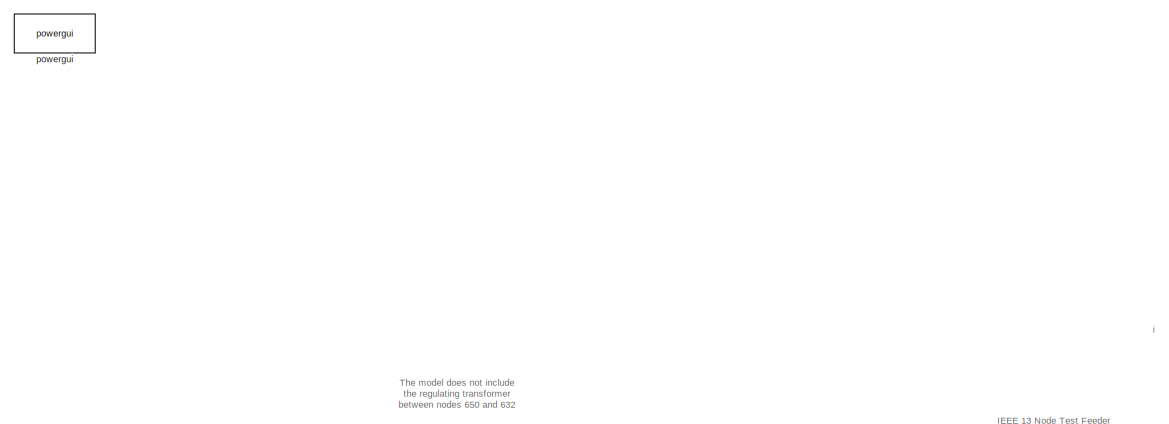
[diagram: root canvas - part 1/4, top left region]
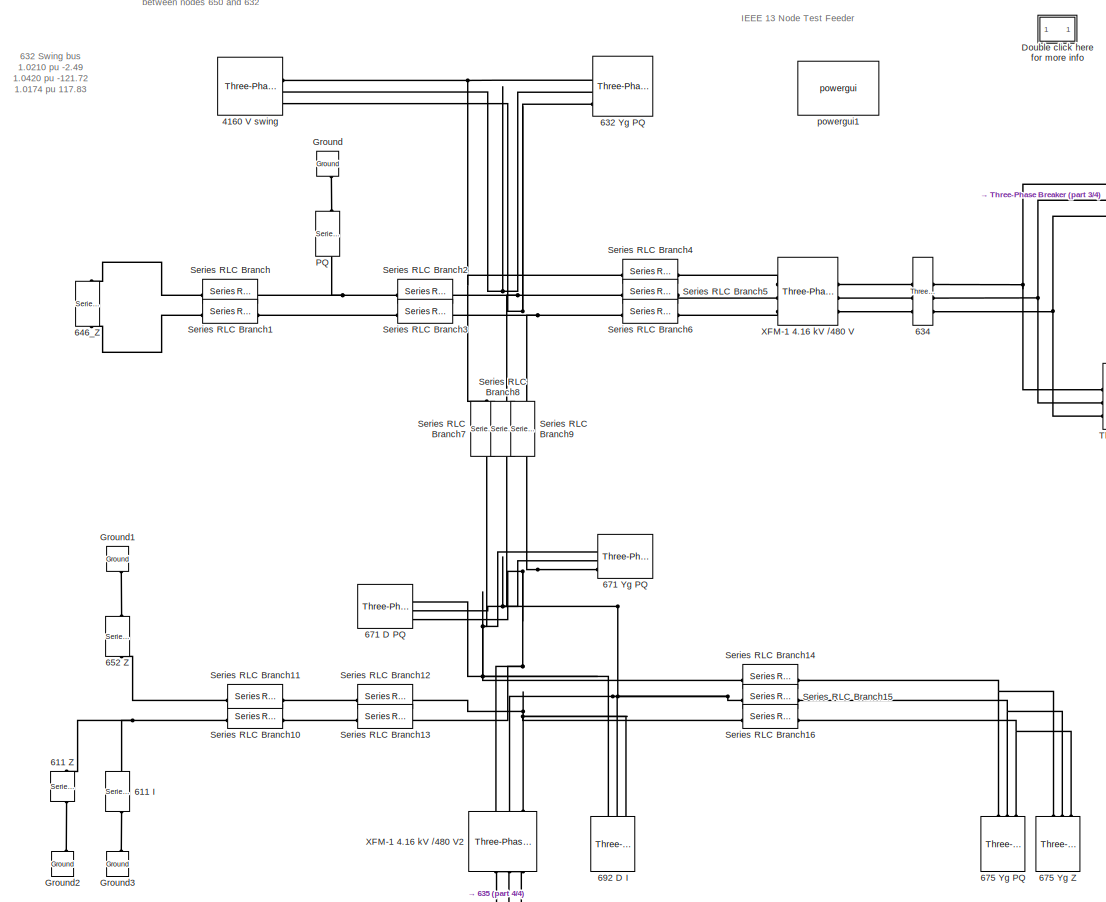
[diagram: root canvas - part 2/4, central region]
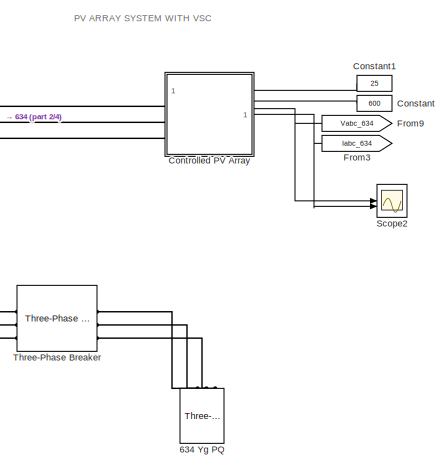
[diagram: root canvas - part 3/4, middle right region]
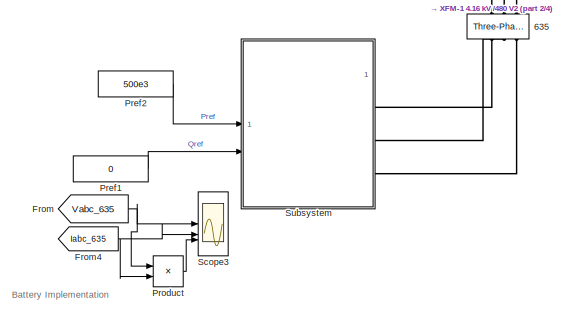
[diagram: root canvas - part 4/4, bottom left region]
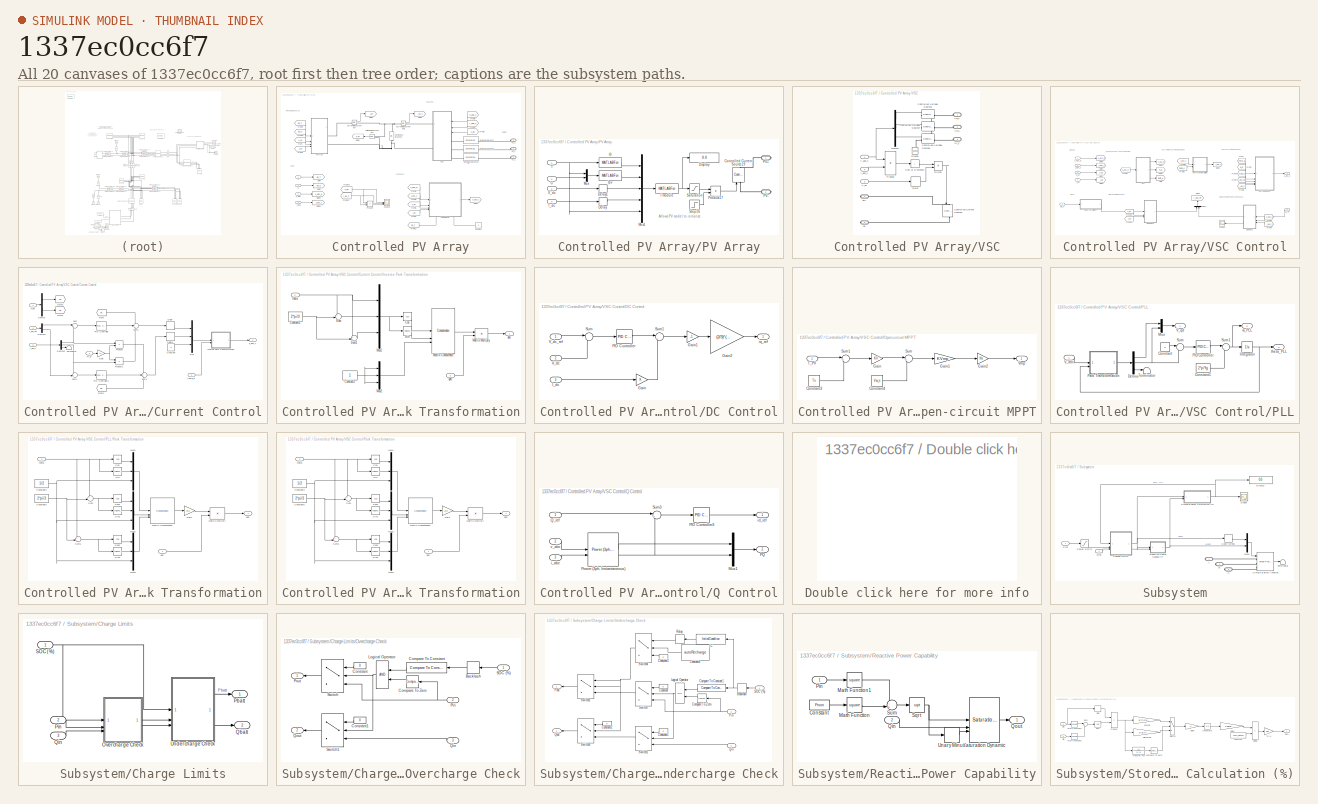
[diagram: thumbnail index - all 20 canvases of the model, root first then tree order]
MODEL slx_1337ec0cc6f7
KIND model
CONFIG AbsTol = auto
CONFIG EnableMultiTasking = off
CONFIG FixedStep = auto
CONFIG MaxStep = auto
CONFIG MinStep = auto
CONFIG RelTol = 1e-3
CONFIG SampleTimeConstraint = Unconstrained
CONFIG SolverName = VariableStepAuto
CONFIG StartTime = 0.0
CONFIG StopTime = 1
BLOCK [Reference]  634 Yg PQ   REF=spsThreePhaseSeriesRLCLoadLib/Three-Phase
Series RLC Load
  AttributesFormatString = P= %<Pabc> W\nQl=%<QLabc> var\nQc=%<QCabc> var
  LibrarySourceBlock = sps_lib/Passives/Three-Phase\nSeries RLC Load
  NameLocation = right
  SourceBlock = spsThreePhaseSeriesRLCLoadLib/Three-Phase\nSeries RLC Load
  SourceType = Three-Phase Series RLC Load
BLOCK [Reference] 4160 V swing  REF=spsThreePhaseSourceLib/Three-Phase Source
  LibrarySourceBlock = sps_lib/Sources/Three-Phase Source
  SourceBlock = spsThreePhaseSourceLib/Three-Phase Source
  SourceType = Three-Phase Source
BLOCK [Reference] 611 I  REF=spsSeriesRLCLoadLib/Series RLC Load
  AttributesFormatString = P=%<ActivePower> W\nQl=%<InductivePower> var\nQc=%<CapacitivePower> var
  LibrarySourceBlock = sps_lib/Passives/Series RLC Load
  NameLocation = right
  SourceBlock = spsSeriesRLCLoadLib/Series RLC Load
  SourceType = Series RLC Load
BLOCK [Reference] 611 Z  REF=spsSeriesRLCLoadLib/Series RLC Load
  AttributesFormatString = P=%<ActivePower> W\nQl=%<InductivePower> var\nQc=%<CapacitivePower> var
  LibrarySourceBlock = sps_lib/Passives/Series RLC Load
  NameLocation = left
  SourceBlock = spsSeriesRLCLoadLib/Series RLC Load
  SourceType = Series RLC Load
BLOCK [Reference] 632 Yg PQ  REF=spsThreePhaseSeriesRLCLoadLib/Three-Phase
Series RLC Load
  AttributesFormatString = P= %<Pabc> W\nQl=%<QLabc> var\nQc=%<QCabc> var
  LibrarySourceBlock = sps_lib/Passives/Three-Phase\nSeries RLC Load
  NameLocation = top
  SourceBlock = spsThreePhaseSeriesRLCLoadLib/Three-Phase\nSeries RLC Load
  SourceType = Three-Phase Series RLC Load
BLOCK [Reference] 634  REF=spsThreePhaseVIMeasurementLib/Three-Phase
V-I Measurement
  LibrarySourceBlock = sps_lib/Sensors and Measurements/Three-Phase\nV-I Measurement
  SourceBlock = spsThreePhaseVIMeasurementLib/Three-Phase\nV-I Measurement
  SourceType = Three-Phase VI Measurement
BLOCK [Reference] 635  REF=spsThreePhaseVIMeasurementLib/Three-Phase
V-I Measurement
  LibrarySourceBlock = sps_lib/Sensors and Measurements/Three-Phase\nV-I Measurement
  NameLocation = right
  SourceBlock = spsThreePhaseVIMeasurementLib/Three-Phase\nV-I Measurement
  SourceType = Three-Phase VI Measurement
BLOCK [Reference] 646_Z  REF=spsSeriesRLCLoadLib/Series RLC Load
  AttributesFormatString = P=%<ActivePower> W\nQl=%<InductivePower> var\nQc=%<CapacitivePower> var
  LibrarySourceBlock = sps_lib/Passives/Series RLC Load
  NameLocation = left
  SourceBlock = spsSeriesRLCLoadLib/Series RLC Load
  SourceType = Series RLC Load
BLOCK [Reference] 652  Z   REF=spsSeriesRLCLoadLib/Series RLC Load
  AttributesFormatString = P=%<ActivePower> W\nQl=%<InductivePower> var\nQc=%<CapacitivePower> var
  LibrarySourceBlock = sps_lib/Passives/Series RLC Load
  NameLocation = right
  SourceBlock = spsSeriesRLCLoadLib/Series RLC Load
  SourceType = Series RLC Load
BLOCK [Reference] 671 D PQ  REF=spsThreePhaseSeriesRLCLoadLib/Three-Phase
Series RLC Load
  AttributesFormatString = P= %<Pabcp> W\nQl=%<QLabcp> var\nQc=%<QCabcp> var
  LibrarySourceBlock = sps_lib/Passives/Three-Phase\nSeries RLC Load
  NameLocation = top
  SourceBlock = spsThreePhaseSeriesRLCLoadLib/Three-Phase\nSeries RLC Load
  SourceType = Three-Phase Series RLC Load
BLOCK [Reference] 671 Yg PQ  REF=spsThreePhaseSeriesRLCLoadLib/Three-Phase
Series RLC Load
  AttributesFormatString = P= %<Pabc> W\nQl=%<QLabc> var\nQc=%<QCabc> var
  LibrarySourceBlock = sps_lib/Passives/Three-Phase\nSeries RLC Load
  NameLocation = top
  SourceBlock = spsThreePhaseSeriesRLCLoadLib/Three-Phase\nSeries RLC Load
  SourceType = Three-Phase Series RLC Load
BLOCK [Reference] 675 Yg PQ  REF=spsThreePhaseSeriesRLCLoadLib/Three-Phase
Series RLC Load
  AttributesFormatString = P= %<Pabc> W\nQl=%<QLabc> var\nQc=%<QCabc> var
  LibrarySourceBlock = sps_lib/Passives/Three-Phase\nSeries RLC Load
  NameLocation = left
  SourceBlock = spsThreePhaseSeriesRLCLoadLib/Three-Phase\nSeries RLC Load
  SourceType = Three-Phase Series RLC Load
BLOCK [Reference] 675 Yg Z  REF=spsThreePhaseSeriesRLCLoadLib/Three-Phase
Series RLC Load
  AttributesFormatString = P= %<Pabc> W\nQl=%<QLabc> var\nQc=%<QCabc> var
  LibrarySourceBlock = sps_lib/Passives/Three-Phase\nSeries RLC Load
  NameLocation = right
  SourceBlock = spsThreePhaseSeriesRLCLoadLib/Three-Phase\nSeries RLC Load
  SourceType = Three-Phase Series RLC Load
BLOCK [Reference] 692 D I  REF=spsThreePhaseSeriesRLCLoadLib/Three-Phase
Series RLC Load
  AttributesFormatString = P= %<Pabcp> W\nQl=%<QLabcp> var\nQc=%<QCabcp> var
  LibrarySourceBlock = sps_lib/Passives/Three-Phase\nSeries RLC Load
  NameLocation = right
  SourceBlock = spsThreePhaseSeriesRLCLoadLib/Three-Phase\nSeries RLC Load
  SourceType = Three-Phase Series RLC Load
BLOCK [Constant] Constant
  NameLocation = top
  Value = 600
BLOCK [Constant] Constant1
  NameLocation = top
  Value = 25
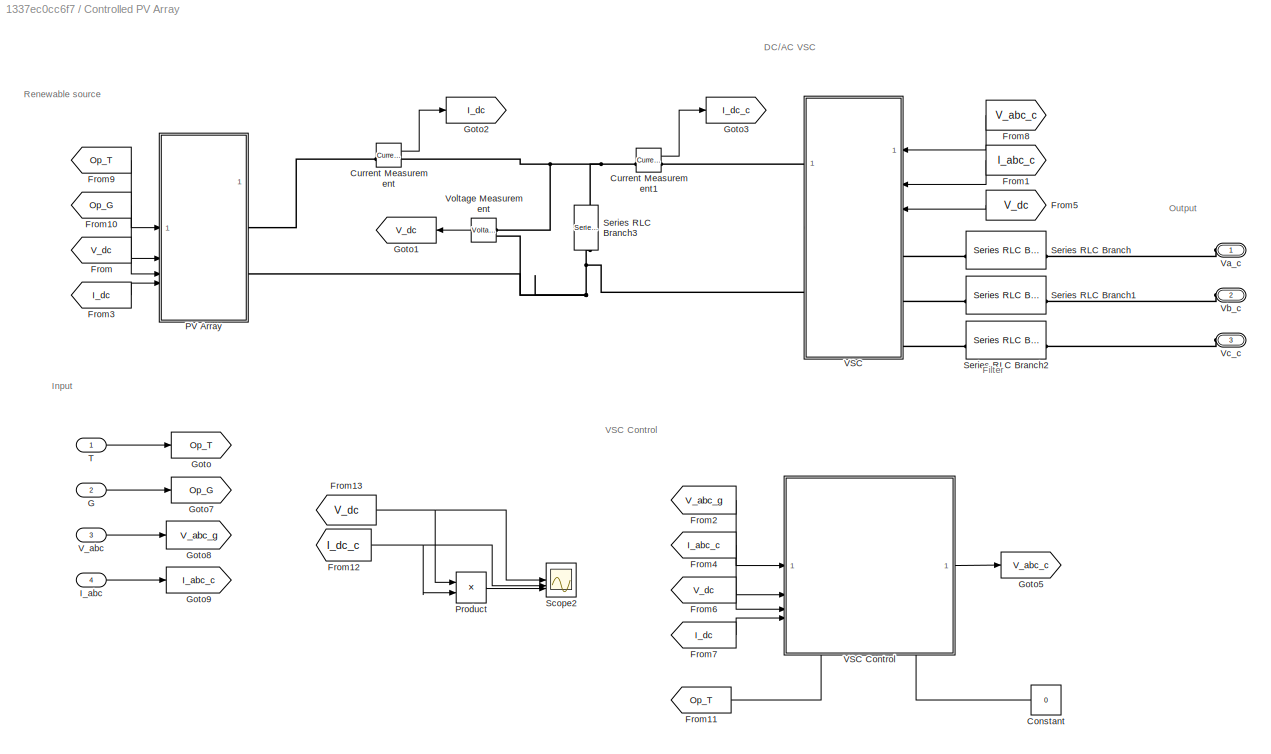
BLOCK [SubSystem] Controlled PV Array
  PortSchema = {"entries":[{"content":{"sides":[{"content":{"connectorIds":["LConn1","LConn2","LConn3"]},"type":"ConnectorPlacement.EquallySpacedRectSide","uuid":"92a05cf9-a19b-475d-bffb-9406018f82f4"},{"content":{"connectorIds":["In1","In2","In3","In4"],"side":"RIGHT"},"type":"ConnectorPlacement.EquallySpacedRectSide","uuid":"83076eb6-0a86-49d7-8932-035501cdc6f6"},{"content":{"side":"TOP"},"type":"ConnectorPlac...<+260ch>
BLOCK [Constant] Controlled PV Array/Constant
  NameLocation = top
  Value = 0
BLOCK [Reference] Controlled PV Array/Current Measurement  REF=spsCurrentMeasurementLib/Current Measurement
  LibrarySourceBlock = sps_lib/Sensors and Measurements/Current Measurement
  SourceBlock = spsCurrentMeasurementLib/Current Measurement
  SourceType = Current Measurement
  UserDataPersistent = on
BLOCK [Reference] Controlled PV Array/Current Measurement1  REF=spsCurrentMeasurementLib/Current Measurement
  LibrarySourceBlock = sps_lib/Sensors and Measurements/Current Measurement
  SourceBlock = spsCurrentMeasurementLib/Current Measurement
  SourceType = Current Measurement
  UserDataPersistent = on
BLOCK [From] Controlled PV Array/From
  GotoTag = V_dc
  NameLocation = top
BLOCK [From] Controlled PV Array/From1
  GotoTag = I_abc_c
  NameLocation = top
BLOCK [From] Controlled PV Array/From10
  GotoTag = Op_G
BLOCK [From] Controlled PV Array/From11
  GotoTag = Op_T
BLOCK [From] Controlled PV Array/From12
  GotoTag = I_dc_c
BLOCK [From] Controlled PV Array/From13
  GotoTag = V_dc
BLOCK [From] Controlled PV Array/From2
  GotoTag = V_abc_g
BLOCK [From] Controlled PV Array/From3
  GotoTag = I_dc
BLOCK [From] Controlled PV Array/From4
  GotoTag = I_abc_c
BLOCK [From] Controlled PV Array/From5
  GotoTag = V_dc
  NameLocation = top
BLOCK [From] Controlled PV Array/From6
  GotoTag = V_dc
BLOCK [From] Controlled PV Array/From7
  GotoTag = I_dc
BLOCK [From] Controlled PV Array/From8
  GotoTag = V_abc_c
  NameLocation = top
BLOCK [From] Controlled PV Array/From9
  GotoTag = Op_T
BLOCK [Inport] Controlled PV Array/G
  Port = 2
BLOCK [Goto] Controlled PV Array/Goto
  GotoTag = Op_T
BLOCK [Goto] Controlled PV Array/Goto1
  GotoTag = V_dc
BLOCK [Goto] Controlled PV Array/Goto2
  GotoTag = I_dc
  NameLocation = top
BLOCK [Goto] Controlled PV Array/Goto3
  GotoTag = I_dc_c
  NameLocation = top
BLOCK [Goto] Controlled PV Array/Goto5
  GotoTag = V_abc_c
BLOCK [Goto] Controlled PV Array/Goto7
  GotoTag = Op_G
BLOCK [Goto] Controlled PV Array/Goto8
  GotoTag = V_abc_g
BLOCK [Goto] Controlled PV Array/Goto9
  GotoTag = I_abc_c
BLOCK [Inport] Controlled PV Array/I_abc
  Port = 4
BLOCK [SubSystem] Controlled PV Array/PV Array
BLOCK [Reference] Controlled PV Array/PV Array/Controlled Current Source19  REF=spsControlledCurrentSourceLib/Controlled Current Source
  LibrarySourceBlock = sps_lib/Sources/Controlled Current Source
  SourceBlock = spsControlledCurrentSourceLib/Controlled Current Source
  SourceType = Controlled Current Source
BLOCK [Delay] Controlled PV Array/PV Array/Delay
  DelayLength = 1
  InitialCondition = 1000
  InputPortMap = u0
BLOCK [Delay] Controlled PV Array/PV Array/Delay1
  DelayLength = 1
  InitialCondition = 1200
  InputPortMap = u0
BLOCK [Display] Controlled PV Array/PV Array/Display
  Decimation = 1
BLOCK [Inport] Controlled PV Array/PV Array/G
  Port = 2
BLOCK [MATLABFcn] Controlled PV Array/PV Array/I module
  MATLABFcn = Np*u(2)-Np*u(1)*(exp((u(3)/(Ns)+Rs*u(4)/Np)/((Ns_cell*k*(u(5)+273.15)/q)*a))-1)-Np*((u(3)/(Ns)+Rs*u(4)/Np)/Rp)
  OutputDimensions = 1
BLOCK [MATLABFcn] Controlled PV Array/PV Array/I0
  MATLABFcn = (Isc_n+KI*(u(1)-Tn))/(exp((Voc_n+KV*(u(1)-Tn))/((Ns_cell*k*(u(1)+273.15)/q)*a))-1);
  NameLocation = top
  OutputDimensions = 1
BLOCK [Inport] Controlled PV Array/PV Array/I_dc
  Port = 4
BLOCK [MATLABFcn] Controlled PV Array/PV Array/Ipv
  MATLABFcn = (Ipv_n+KI*(u(1)-Tn))*(u(2)/Gn);
  OutputDimensions = 1
BLOCK [Mux] Controlled PV Array/PV Array/Mux
  DisplayOption = bar
  Inputs = 2
BLOCK [Mux] Controlled PV Array/PV Array/Mux1
  DisplayOption = bar
  Inputs = 5
BLOCK [PMIOPort] Controlled PV Array/PV Array/PV+
  Side = Right
BLOCK [PMIOPort] Controlled PV Array/PV Array/PV-
  Port = 2
  Side = Right
BLOCK [Product] Controlled PV Array/PV Array/Product17
BLOCK [Saturate] Controlled PV Array/PV Array/Saturation
  LowerLimit = 0.1
  UpperLimit = 10e6
BLOCK [Step] Controlled PV Array/PV Array/Step16
  SampleTime = 0
  Time = 0.001
BLOCK [Inport] Controlled PV Array/PV Array/T
BLOCK [Inport] Controlled PV Array/PV Array/V_dc
  Port = 3
BLOCK [Product] Controlled PV Array/Product
BLOCK [Scope] Controlled PV Array/Scope2
  Floating = off
  NumInputPorts = 3
  ScopeSpecificationString = Simulink.scopes.TimeScopeBlockCfg('CurrentConfiguration', extmgr.ConfigurationSet(extmgr.Configuration('Core','General UI',true),extmgr.Configuration('Core','Source UI',true),extmgr.Configuration('Sources','WiredSimulink',true,'DataLoggingVariableName','ScopeData1'),extmgr.Configuration('Visuals','Time Domain',true,'SerializedDisplays',{struct('MinYLimReal','1161.24124','MaxYLimReal','1241.17653',...<+2865ch>
BLOCK [Reference] Controlled PV Array/Series RLC Branch  REF=spsSeriesRLCBranchLib/Series RLC Branch
  LibrarySourceBlock = sps_lib/Passives/Series RLC Branch
  SourceBlock = spsSeriesRLCBranchLib/Series RLC Branch
  SourceType = Series RLC Branch
BLOCK [Reference] Controlled PV Array/Series RLC Branch1  REF=spsSeriesRLCBranchLib/Series RLC Branch
  LibrarySourceBlock = sps_lib/Passives/Series RLC Branch
  SourceBlock = spsSeriesRLCBranchLib/Series RLC Branch
  SourceType = Series RLC Branch
BLOCK [Reference] Controlled PV Array/Series RLC Branch2  REF=spsSeriesRLCBranchLib/Series RLC Branch
  LibrarySourceBlock = sps_lib/Passives/Series RLC Branch
  SourceBlock = spsSeriesRLCBranchLib/Series RLC Branch
  SourceType = Series RLC Branch
BLOCK [Reference] Controlled PV Array/Series RLC Branch3  REF=spsSeriesRLCBranchLib/Series RLC Branch
  LibrarySourceBlock = sps_lib/Passives/Series RLC Branch
  NameLocation = left
  SourceBlock = spsSeriesRLCBranchLib/Series RLC Branch
  SourceType = Series RLC Branch
BLOCK [Inport] Controlled PV Array/T
BLOCK [SubSystem] Controlled PV Array/VSC
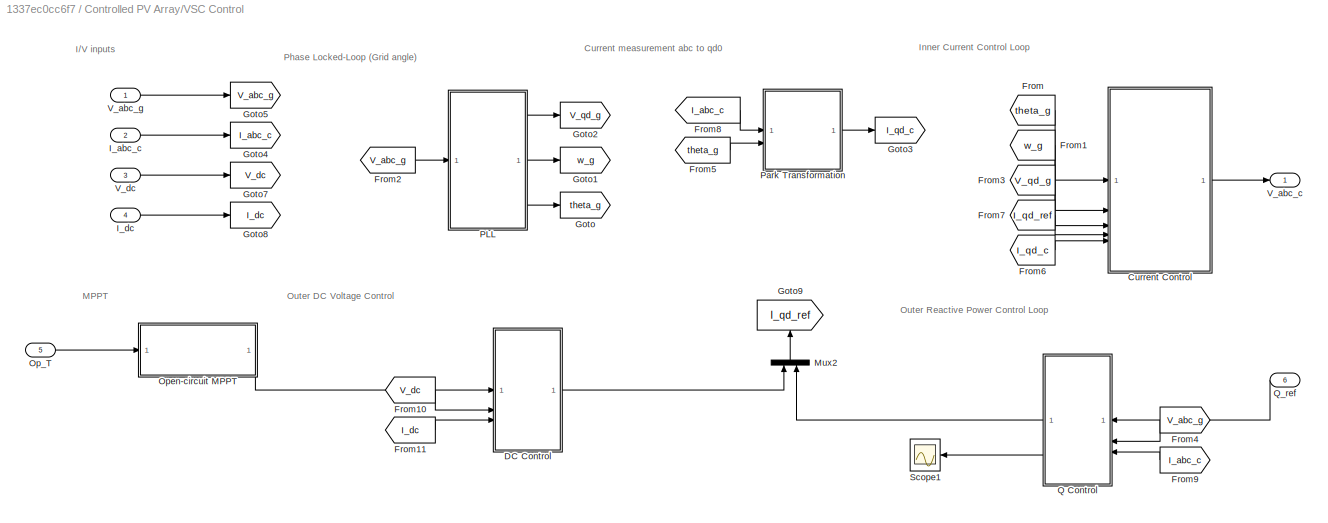
BLOCK [SubSystem] Controlled PV Array/VSC Control
  NameLocation = top
  PortSchema = {"entries":[{"content":{"sides":[{"content":{"connectorIds":["In1","In2","In3","In4"]},"type":"ConnectorPlacement.EquallySpacedRectSide","uuid":"1f0c866f-1355-4493-8a8b-fecd52da2e06"},{"content":{"connectorIds":["Out1"],"side":"RIGHT"},"type":"ConnectorPlacement.EquallySpacedRectSide","uuid":"e0482316-46fe-491c-835b-46d73fa6817a"},{"content":{"side":"TOP"},"type":"ConnectorPlacement.EquallySpacedR...<+395ch>
BLOCK [SubSystem] Controlled PV Array/VSC Control/Current Control
BLOCK [Constant] Controlled PV Array/VSC Control/Current Control/Constant
  Value = 0
BLOCK [Delay] Controlled PV Array/VSC Control/Current Control/Delay
  DelayLength = 1
  InitialCondition = 0.1
  InputPortMap = u0
BLOCK [Delay] Controlled PV Array/VSC Control/Current Control/Delay1
  DelayLength = 1
  InitialCondition = 0.1
  InputPortMap = u0
BLOCK [Demux] Controlled PV Array/VSC Control/Current Control/Demux
  Outputs = 2
BLOCK [Demux] Controlled PV Array/VSC Control/Current Control/Demux1
  Outputs = 2
BLOCK [Demux] Controlled PV Array/VSC Control/Current Control/Demux2
  Outputs = 3
BLOCK [From] Controlled PV Array/VSC Control/Current Control/From
  GotoTag = Vq
BLOCK [From] Controlled PV Array/VSC Control/Current Control/From1
  GotoTag = Vd
BLOCK [Gain] Controlled PV Array/VSC Control/Current Control/Gain
  Gain = Lc
BLOCK [Goto] Controlled PV Array/VSC Control/Current Control/Goto1
  GotoTag = Vd
BLOCK [Goto] Controlled PV Array/VSC Control/Current Control/Goto2
  GotoTag = Vq
BLOCK [Inport] Controlled PV Array/VSC Control/Current Control/I_qd_c
  Port = 5
BLOCK [Inport] Controlled PV Array/VSC Control/Current Control/I_qd_ref
  Port = 4
BLOCK [SubSystem] Controlled PV Array/VSC Control/Current Control/Inverse Park Transformation
BLOCK [Constant] Controlled PV Array/VSC Control/Current Control/Inverse Park Transformation/Constant2
BLOCK [Constant] Controlled PV Array/VSC Control/Current Control/Inverse Park Transformation/Constant3
  Value = 2*pi/3
BLOCK [Trigonometry] Controlled PV Array/VSC Control/Current Control/Inverse Park Transformation/Cos
  Operator = cos
BLOCK [Concatenate] Controlled PV Array/VSC Control/Current Control/Inverse Park Transformation/Matrix Concatenate
  ConcatenateDimension = 2
  Mode = Multidimensional array
  NumInputs = 3
BLOCK [Product] Controlled PV Array/VSC Control/Current Control/Inverse Park Transformation/Matrix Multiply
  Multiplication = Matrix(*)
BLOCK [Mux] Controlled PV Array/VSC Control/Current Control/Inverse Park Transformation/Mux1
  DisplayOption = bar
  Inputs = 3
BLOCK [Mux] Controlled PV Array/VSC Control/Current Control/Inverse Park Transformation/Mux2
  DisplayOption = bar
  Inputs = 3
BLOCK [Trigonometry] Controlled PV Array/VSC Control/Current Control/Inverse Park Transformation/Sin
BLOCK [Sum] Controlled PV Array/VSC Control/Current Control/Inverse Park Transformation/Sum
  Inputs = +-|
BLOCK [Sum] Controlled PV Array/VSC Control/Current Control/Inverse Park Transformation/Sum1
  Inputs = ++|
BLOCK [Outport] Controlled PV Array/VSC Control/Current Control/Inverse Park Transformation/abc
BLOCK [Inport] Controlled PV Array/VSC Control/Current Control/Inverse Park Transformation/qd0
BLOCK [Inport] Controlled PV Array/VSC Control/Current Control/Inverse Park Transformation/theta
  Port = 2
BLOCK [Mux] Controlled PV Array/VSC Control/Current Control/Mux
  DisplayOption = bar
  Inputs = 3
BLOCK [Reference] Controlled PV Array/VSC Control/Current Control/PID Controller  REF=slpidlib/PID Controller
  LibrarySourceBlock = simulink/Continuous/PID Controller
  SourceBlock = slpidlib/PID Controller
  SourceType = PID 1dof
BLOCK [Reference] Controlled PV Array/VSC Control/Current Control/PID Controller1  REF=slpidlib/PID Controller
  LibrarySourceBlock = simulink/Continuous/PID Controller
  SourceBlock = slpidlib/PID Controller
  SourceType = PID 1dof
BLOCK [Product] Controlled PV Array/VSC Control/Current Control/Product
BLOCK [Product] Controlled PV Array/VSC Control/Current Control/Product1
BLOCK [Sum] Controlled PV Array/VSC Control/Current Control/Sum
  Inputs = |+-
BLOCK [Sum] Controlled PV Array/VSC Control/Current Control/Sum1
  Inputs = -+|
BLOCK [Sum] Controlled PV Array/VSC Control/Current Control/Sum2
  Inputs = +++
BLOCK [Sum] Controlled PV Array/VSC Control/Current Control/Sum4
  Inputs = -++
BLOCK [Terminator] Controlled PV Array/VSC Control/Current Control/Terminator
BLOCK [Outport] Controlled PV Array/VSC Control/Current Control/V_abc_c
BLOCK [Inport] Controlled PV Array/VSC Control/Current Control/V_qd
  Port = 3
BLOCK [Inport] Controlled PV Array/VSC Control/Current Control/theta_g
BLOCK [Inport] Controlled PV Array/VSC Control/Current Control/w_g
  Port = 2
BLOCK [SubSystem] Controlled PV Array/VSC Control/DC Control
BLOCK [Gain] Controlled PV Array/VSC Control/DC Control/Gain
BLOCK [Gain] Controlled PV Array/VSC Control/DC Control/Gain1
  Gain = -1
BLOCK [Gain] Controlled PV Array/VSC Control/DC Control/Gain2
  Gain = (2/3)*(Vdc/Vp)
BLOCK [Inport] Controlled PV Array/VSC Control/DC Control/I_dc
  Port = 3
BLOCK [Reference] Controlled PV Array/VSC Control/DC Control/PID Controller  REF=slpidlib/PID Controller
  LibrarySourceBlock = simulink/Continuous/PID Controller
  SourceBlock = slpidlib/PID Controller
  SourceType = PID 1dof
BLOCK [Sum] Controlled PV Array/VSC Control/DC Control/Sum
  Inputs = |+-
BLOCK [Sum] Controlled PV Array/VSC Control/DC Control/Sum1
  Inputs = |+-
BLOCK [Inport] Controlled PV Array/VSC Control/DC Control/V_dc
  Port = 2
BLOCK [Inport] Controlled PV Array/VSC Control/DC Control/V_dc_ref
BLOCK [Outport] Controlled PV Array/VSC Control/DC Control/iq_ref
BLOCK [From] Controlled PV Array/VSC Control/From
  GotoTag = theta_g
BLOCK [From] Controlled PV Array/VSC Control/From1
  GotoTag = w_g
BLOCK [From] Controlled PV Array/VSC Control/From10
  GotoTag = V_dc
BLOCK [From] Controlled PV Array/VSC Control/From11
  GotoTag = I_dc
BLOCK [From] Controlled PV Array/VSC Control/From2
  GotoTag = V_abc_g
BLOCK [From] Controlled PV Array/VSC Control/From3
  GotoTag = V_qd_g
BLOCK [From] Controlled PV Array/VSC Control/From4
  GotoTag = V_abc_g
  NameLocation = top
BLOCK [From] Controlled PV Array/VSC Control/From5
  GotoTag = theta_g
BLOCK [From] Controlled PV Array/VSC Control/From6
  GotoTag = I_qd_c
BLOCK [From] Controlled PV Array/VSC Control/From7
  GotoTag = I_qd_ref
BLOCK [From] Controlled PV Array/VSC Control/From8
  GotoTag = I_abc_c
BLOCK [From] Controlled PV Array/VSC Control/From9
  GotoTag = I_abc_c
  NameLocation = top
BLOCK [Goto] Controlled PV Array/VSC Control/Goto
  GotoTag = theta_g
BLOCK [Goto] Controlled PV Array/VSC Control/Goto1
  GotoTag = w_g
BLOCK [Goto] Controlled PV Array/VSC Control/Goto2
  GotoTag = V_qd_g
BLOCK [Goto] Controlled PV Array/VSC Control/Goto3
  GotoTag = I_qd_c
BLOCK [Goto] Controlled PV Array/VSC Control/Goto4
  GotoTag = I_abc_c
  NameLocation = top
BLOCK [Goto] Controlled PV Array/VSC Control/Goto5
  GotoTag = V_abc_g
  NameLocation = top
BLOCK [Goto] Controlled PV Array/VSC Control/Goto7
  GotoTag = V_dc
BLOCK [Goto] Controlled PV Array/VSC Control/Goto8
  GotoTag = I_dc
BLOCK [Goto] Controlled PV Array/VSC Control/Goto9
  GotoTag = I_qd_ref
  NameLocation = right
BLOCK [Inport] Controlled PV Array/VSC Control/I_abc_c
  Port = 2
BLOCK [Inport] Controlled PV Array/VSC Control/I_dc
  Port = 4
BLOCK [Mux] Controlled PV Array/VSC Control/Mux2
  DisplayOption = bar
  Inputs = 2
  NameLocation = right
BLOCK [Inport] Controlled PV Array/VSC Control/Op_T
  Port = 5
BLOCK [SubSystem] Controlled PV Array/VSC Control/Open-circuit MPPT
BLOCK [Constant] Controlled PV Array/VSC Control/Open-circuit MPPT/Constant3
  Value = Tn
BLOCK [Constant] Controlled PV Array/VSC Control/Open-circuit MPPT/Constant4
  Value = Voc_n
BLOCK [Gain] Controlled PV Array/VSC Control/Open-circuit MPPT/Gain
  Gain = KV
BLOCK [Gain] Controlled PV Array/VSC Control/Open-circuit MPPT/Gain1
  Gain = KVmp
BLOCK [Gain] Controlled PV Array/VSC Control/Open-circuit MPPT/Gain2
  Gain = Ns
BLOCK [Sum] Controlled PV Array/VSC Control/Open-circuit MPPT/Sum
  Inputs = |++
BLOCK [Sum] Controlled PV Array/VSC Control/Open-circuit MPPT/Sum1
  Inputs = |+-
BLOCK [Inport] Controlled PV Array/VSC Control/Open-circuit MPPT/T_PV
BLOCK [Outport] Controlled PV Array/VSC Control/Open-circuit MPPT/Vmp
BLOCK [SubSystem] Controlled PV Array/VSC Control/PLL
BLOCK [Constant] Controlled PV Array/VSC Control/PLL/Constant
  Value = 0
BLOCK [Constant] Controlled PV Array/VSC Control/PLL/Constant1
  Value = 2*pi*fg
BLOCK [Demux] Controlled PV Array/VSC Control/PLL/Demux
  Outputs = 3
BLOCK [Integrator] Controlled PV Array/VSC Control/PLL/Integrator
BLOCK [Mux] Controlled PV Array/VSC Control/PLL/Mux
  DisplayOption = bar
  Inputs = 2
BLOCK [Reference] Controlled PV Array/VSC Control/PLL/PID Controller  REF=slpidlib/PID Controller
  LibrarySourceBlock = simulink/Continuous/PID Controller
  SourceBlock = slpidlib/PID Controller
  SourceType = PID 1dof
BLOCK [SubSystem] Controlled PV Array/VSC Control/PLL/Park Transformation
BLOCK [Constant] Controlled PV Array/VSC Control/PLL/Park Transformation/Constant3
  Value = 1/2
BLOCK [Constant] Controlled PV Array/VSC Control/PLL/Park Transformation/Constant5
  Value = 2*pi/3
BLOCK [Trigonometry] Controlled PV Array/VSC Control/PLL/Park Transformation/Cos
  Operator = cos
BLOCK [Trigonometry] Controlled PV Array/VSC Control/PLL/Park Transformation/Cos1
  Operator = cos
BLOCK [Trigonometry] Controlled PV Array/VSC Control/PLL/Park Transformation/Cos2
  Operator = cos
BLOCK [Gain] Controlled PV Array/VSC Control/PLL/Park Transformation/Gain
  Gain = 2/3
BLOCK [Concatenate] Controlled PV Array/VSC Control/PLL/Park Transformation/Matrix Concatenate
  ConcatenateDimension = 2
  Mode = Multidimensional array
  NumInputs = 3
BLOCK [Product] Controlled PV Array/VSC Control/PLL/Park Transformation/Matrix Multiply
  Multiplication = Matrix(*)
BLOCK [Mux] Controlled PV Array/VSC Control/PLL/Park Transformation/Mux1
  DisplayOption = bar
  Inputs = 3
BLOCK [Mux] Controlled PV Array/VSC Control/PLL/Park Transformation/Mux2
  DisplayOption = bar
  Inputs = 3
BLOCK [Mux] Controlled PV Array/VSC Control/PLL/Park Transformation/Mux3
  DisplayOption = bar
  Inputs = 3
BLOCK [Trigonometry] Controlled PV Array/VSC Control/PLL/Park Transformation/Sin
BLOCK [Trigonometry] Controlled PV Array/VSC Control/PLL/Park Transformation/Sin1
BLOCK [Trigonometry] Controlled PV Array/VSC Control/PLL/Park Transformation/Sin2
BLOCK [Sum] Controlled PV Array/VSC Control/PLL/Park Transformation/Sum
  Inputs = +-|
BLOCK [Sum] Controlled PV Array/VSC Control/PLL/Park Transformation/Sum1
  Inputs = ++|
BLOCK [Inport] Controlled PV Array/VSC Control/PLL/Park Transformation/abc
BLOCK [Outport] Controlled PV Array/VSC Control/PLL/Park Transformation/qd0
BLOCK [Inport] Controlled PV Array/VSC Control/PLL/Park Transformation/theta
  Port = 2
BLOCK [Sum] Controlled PV Array/VSC Control/PLL/Sum
  Inputs = |+-
BLOCK [Sum] Controlled PV Array/VSC Control/PLL/Sum1
  Inputs = |++
BLOCK [Terminator] Controlled PV Array/VSC Control/PLL/Terminator
BLOCK [Inport] Controlled PV Array/VSC Control/PLL/V_abc
BLOCK [Outport] Controlled PV Array/VSC Control/PLL/V_qd
BLOCK [Outport] Controlled PV Array/VSC Control/PLL/theta_PLL
  Port = 3
BLOCK [Outport] Controlled PV Array/VSC Control/PLL/w_PLL
  Port = 2
BLOCK [SubSystem] Controlled PV Array/VSC Control/Park Transformation
BLOCK [Constant] Controlled PV Array/VSC Control/Park Transformation/Constant3
  Value = 1/2
BLOCK [Constant] Controlled PV Array/VSC Control/Park Transformation/Constant5
  Value = 2*pi/3
BLOCK [Trigonometry] Controlled PV Array/VSC Control/Park Transformation/Cos
  Operator = cos
BLOCK [Trigonometry] Controlled PV Array/VSC Control/Park Transformation/Cos1
  Operator = cos
BLOCK [Trigonometry] Controlled PV Array/VSC Control/Park Transformation/Cos2
  Operator = cos
BLOCK [Gain] Controlled PV Array/VSC Control/Park Transformation/Gain
  Gain = 2/3
BLOCK [Concatenate] Controlled PV Array/VSC Control/Park Transformation/Matrix Concatenate
  ConcatenateDimension = 2
  Mode = Multidimensional array
  NumInputs = 3
BLOCK [Product] Controlled PV Array/VSC Control/Park Transformation/Matrix Multiply
  Multiplication = Matrix(*)
BLOCK [Mux] Controlled PV Array/VSC Control/Park Transformation/Mux1
  DisplayOption = bar
  Inputs = 3
BLOCK [Mux] Controlled PV Array/VSC Control/Park Transformation/Mux2
  DisplayOption = bar
  Inputs = 3
BLOCK [Mux] Controlled PV Array/VSC Control/Park Transformation/Mux3
  DisplayOption = bar
  Inputs = 3
BLOCK [Trigonometry] Controlled PV Array/VSC Control/Park Transformation/Sin
BLOCK [Trigonometry] Controlled PV Array/VSC Control/Park Transformation/Sin1
BLOCK [Trigonometry] Controlled PV Array/VSC Control/Park Transformation/Sin2
BLOCK [Sum] Controlled PV Array/VSC Control/Park Transformation/Sum
  Inputs = +-|
BLOCK [Sum] Controlled PV Array/VSC Control/Park Transformation/Sum1
  Inputs = ++|
BLOCK [Inport] Controlled PV Array/VSC Control/Park Transformation/abc
BLOCK [Outport] Controlled PV Array/VSC Control/Park Transformation/qd0
BLOCK [Inport] Controlled PV Array/VSC Control/Park Transformation/theta
  Port = 2
BLOCK [SubSystem] Controlled PV Array/VSC Control/Q Control
BLOCK [Mux] Controlled PV Array/VSC Control/Q Control/Mux1
  DisplayOption = bar
  Inputs = 2
BLOCK [Reference] Controlled PV Array/VSC Control/Q Control/PID Controller3  REF=slpidlib/PID Controller
  LibrarySourceBlock = simulink/Continuous/PID Controller
  SourceBlock = slpidlib/PID Controller
  SourceType = PID 1dof
BLOCK [Outport] Controlled PV Array/VSC Control/Q Control/PQ
  Port = 2
BLOCK [Reference] Controlled PV Array/VSC Control/Q Control/Power (3ph, Instantaneous)  REF=spsPower3phInstantaneousLib/Power
(3ph, Instantaneous)
  LibrarySourceBlock = sps_lib/Sensors and Measurements/Power\n(3ph, Instantaneous)
  SourceBlock = spsPower3phInstantaneousLib/Power\n(3ph, Instantaneous)
  SourceType = Power (3ph, Instantaneous)
BLOCK [Inport] Controlled PV Array/VSC Control/Q Control/Q_ref
BLOCK [Sum] Controlled PV Array/VSC Control/Q Control/Sum3
  Inputs = |+-
BLOCK [Inport] Controlled PV Array/VSC Control/Q Control/i_abc
  Port = 3
BLOCK [Outport] Controlled PV Array/VSC Control/Q Control/id_ref
BLOCK [Inport] Controlled PV Array/VSC Control/Q Control/v_abc
  Port = 2
BLOCK [Inport] Controlled PV Array/VSC Control/Q_ref
  Port = 6
BLOCK [Scope] Controlled PV Array/VSC Control/Scope1
  Floating = off
  NameLocation = top
  NumInputPorts = 1
  ScopeSpecificationString = Simulink.scopes.TimeScopeBlockCfg('CurrentConfiguration', extmgr.ConfigurationSet(extmgr.Configuration('Core','General UI',true),extmgr.Configuration('Core','Source UI',true),extmgr.Configuration('Sources','WiredSimulink',true,'DataLoggingVariableName','ScopeData1'),extmgr.Configuration('Visuals','Time Domain',true,'SerializedDisplays',{struct('MinYLimReal','-881207.20956','MaxYLimReal','7930863.5...<+1481ch>
BLOCK [Outport] Controlled PV Array/VSC Control/V_abc_c
BLOCK [Inport] Controlled PV Array/VSC Control/V_abc_g
BLOCK [Inport] Controlled PV Array/VSC Control/V_dc
  Port = 3
BLOCK [Reference] Controlled PV Array/VSC/Controlled Current Source1  REF=spsControlledCurrentSourceLib/Controlled Current Source
  LibrarySourceBlock = sps_lib/Sources/Controlled Current Source
  NameLocation = top
  SourceBlock = spsControlledCurrentSourceLib/Controlled Current Source
  SourceType = Controlled Current Source
BLOCK [Reference] Controlled PV Array/VSC/Controlled Voltage Source3  REF=spsControlledVoltageSourceLib/Controlled Voltage Source
  LibrarySourceBlock = sps_lib/Sources/Controlled Voltage Source
  NameLocation = left
  SourceBlock = spsControlledVoltageSourceLib/Controlled Voltage Source
  SourceType = Controlled Voltage Source
BLOCK [Reference] Controlled PV Array/VSC/Controlled Voltage Source4  REF=spsControlledVoltageSourceLib/Controlled Voltage Source
  LibrarySourceBlock = sps_lib/Sources/Controlled Voltage Source
  NameLocation = left
  SourceBlock = spsControlledVoltageSourceLib/Controlled Voltage Source
  SourceType = Controlled Voltage Source
BLOCK [Reference] Controlled PV Array/VSC/Controlled Voltage Source5  REF=spsControlledVoltageSourceLib/Controlled Voltage Source
  LibrarySourceBlock = sps_lib/Sources/Controlled Voltage Source
  NameLocation = left
  SourceBlock = spsControlledVoltageSourceLib/Controlled Voltage Source
  SourceType = Controlled Voltage Source
BLOCK [Delay] Controlled PV Array/VSC/Delay
  DelayLength = 1
  InitialCondition = 1200
  InputPortMap = u0
BLOCK [Demux] Controlled PV Array/VSC/Demux
  NameLocation = top
  Outputs = 3
BLOCK [Product] Controlled PV Array/VSC/Divide
  Inputs = */
  RndMeth = Zero
  SaturateOnIntegerOverflow = on
BLOCK [Reference] Controlled PV Array/VSC/Ground  REF=spsGroundLib/Ground
  LibrarySourceBlock = sps_lib/Utilities/Ground
  NameLocation = right
  SourceBlock = spsGroundLib/Ground
  SourceType = Ground
BLOCK [Inport] Controlled PV Array/VSC/I_abc_c
  Port = 2
BLOCK [Product] Controlled PV Array/VSC/Product
BLOCK [Sum] Controlled PV Array/VSC/Sum of Elements
  IconShape = rectangular
  Inputs = +
BLOCK [Inport] Controlled PV Array/VSC/V_abc_c
BLOCK [Inport] Controlled PV Array/VSC/V_dc
  Port = 3
BLOCK [PMIOPort] Controlled PV Array/VSC/Va_c
  Side = Left
BLOCK [PMIOPort] Controlled PV Array/VSC/Vb_c
  Port = 2
  Side = Left
BLOCK [PMIOPort] Controlled PV Array/VSC/Vc_c
  Port = 3
  Side = Left
BLOCK [PMIOPort] Controlled PV Array/VSC/dc+
  Port = 4
  Side = Right
BLOCK [PMIOPort] Controlled PV Array/VSC/dc-
  Port = 5
  Side = Right
BLOCK [Inport] Controlled PV Array/V_abc
  Port = 3
BLOCK [PMIOPort] Controlled PV Array/Va_c
  Side = Left
BLOCK [PMIOPort] Controlled PV Array/Vb_c
  Port = 2
  Side = Left
BLOCK [PMIOPort] Controlled PV Array/Vc_c
  Port = 3
  Side = Left
BLOCK [Reference] Controlled PV Array/Voltage Measurement  REF=spsVoltageMeasurementLib/Voltage Measurement
  LibrarySourceBlock = sps_lib/Sensors and Measurements/Voltage Measurement
  SourceBlock = spsVoltageMeasurementLib/Voltage Measurement
  SourceType = Voltage Measurement
  UserDataPersistent = on
BLOCK [SubSystem] Double click here for more info
  OpenFcn = showdemo(bdroot(gcb))
BLOCK [From] From
  GotoTag = Vabc_635
  TagVisibility = global
BLOCK [From] From3
  GotoTag = Iabc_634
  NameLocation = top
  TagVisibility = global
BLOCK [From] From4
  GotoTag = Iabc_635
  TagVisibility = global
BLOCK [From] From9
  GotoTag = Vabc_634
  NameLocation = top
  TagVisibility = global
BLOCK [Reference] Ground  REF=spsGroundLib/Ground
  LibrarySourceBlock = sps_lib/Utilities/Ground
  NameLocation = left
  SourceBlock = spsGroundLib/Ground
  SourceType = Ground
BLOCK [Reference] Ground1  REF=spsGroundLib/Ground
  LibrarySourceBlock = sps_lib/Utilities/Ground
  NameLocation = left
  SourceBlock = spsGroundLib/Ground
  SourceType = Ground
BLOCK [Reference] Ground2  REF=spsGroundLib/Ground
  LibrarySourceBlock = sps_lib/Utilities/Ground
  NameLocation = right
  SourceBlock = spsGroundLib/Ground
  SourceType = Ground
BLOCK [Reference] Ground3  REF=spsGroundLib/Ground
  LibrarySourceBlock = sps_lib/Utilities/Ground
  NameLocation = right
  SourceBlock = spsGroundLib/Ground
  SourceType = Ground
BLOCK [Reference] PQ  REF=spsSeriesRLCLoadLib/Series RLC Load
  AttributesFormatString = P=%<ActivePower> W\nQl=%<InductivePower> var\nQc=%<CapacitivePower> var
  LibrarySourceBlock = sps_lib/Passives/Series RLC Load
  NameLocation = right
  SourceBlock = spsSeriesRLCLoadLib/Series RLC Load
  SourceType = Series RLC Load
BLOCK [Constant] Pref1
  NameLocation = top
  Value = 0
BLOCK [Constant] Pref2
  NameLocation = top
  Value = 500e3
BLOCK [Product] Product
BLOCK [Scope] Scope2
  Floating = off
  NumInputPorts = 2
  ScopeSpecificationString = Simulink.scopes.TimeScopeBlockCfg('CurrentConfiguration', extmgr.ConfigurationSet(extmgr.Configuration('Core','General UI',true),extmgr.Configuration('Core','Source UI',true),extmgr.Configuration('Sources','WiredSimulink',true,'DataLoggingVariableName','ScopeData2'),extmgr.Configuration('Visuals','Time Domain',true,'SerializedDisplays',{struct('MinYLimReal','-869.13926','MaxYLimReal','1133.91319',...<+2377ch>
BLOCK [Scope] Scope3
  Floating = off
  NumInputPorts = 3
  ScopeSpecificationString = Simulink.scopes.TimeScopeBlockCfg('CurrentConfiguration', extmgr.ConfigurationSet(extmgr.Configuration('Core','General UI',true),extmgr.Configuration('Core','Source UI',true),extmgr.Configuration('Sources','WiredSimulink',true,'DataLoggingVariableName','ScopeData1'),extmgr.Configuration('Visuals','Time Domain',true,'SerializedDisplays',{struct('MinYLimReal','-1242.10821','MaxYLimReal','1298.74982'...<+3152ch>
BLOCK [Reference] Series RLC Branch  REF=spsSeriesRLCBranchLib/Series RLC Branch
  LibrarySourceBlock = sps_lib/Passives/Series RLC Branch
  SourceBlock = spsSeriesRLCBranchLib/Series RLC Branch
  SourceType = Series RLC Branch
BLOCK [Reference] Series RLC Branch1  REF=spsSeriesRLCBranchLib/Series RLC Branch
  LibrarySourceBlock = sps_lib/Passives/Series RLC Branch
  SourceBlock = spsSeriesRLCBranchLib/Series RLC Branch
  SourceType = Series RLC Branch
BLOCK [Reference] Series RLC Branch10  REF=spsSeriesRLCBranchLib/Series RLC Branch
  LibrarySourceBlock = sps_lib/Passives/Series RLC Branch
  SourceBlock = spsSeriesRLCBranchLib/Series RLC Branch
  SourceType = Series RLC Branch
BLOCK [Reference] Series RLC Branch11  REF=spsSeriesRLCBranchLib/Series RLC Branch
  LibrarySourceBlock = sps_lib/Passives/Series RLC Branch
  NameLocation = top
  SourceBlock = spsSeriesRLCBranchLib/Series RLC Branch
  SourceType = Series RLC Branch
BLOCK [Reference] Series RLC Branch12  REF=spsSeriesRLCBranchLib/Series RLC Branch
  LibrarySourceBlock = sps_lib/Passives/Series RLC Branch
  SourceBlock = spsSeriesRLCBranchLib/Series RLC Branch
  SourceType = Series RLC Branch
BLOCK [Reference] Series RLC Branch13  REF=spsSeriesRLCBranchLib/Series RLC Branch
  LibrarySourceBlock = sps_lib/Passives/Series RLC Branch
  SourceBlock = spsSeriesRLCBranchLib/Series RLC Branch
  SourceType = Series RLC Branch
BLOCK [Reference] Series RLC Branch14  REF=spsSeriesRLCBranchLib/Series RLC Branch
  LibrarySourceBlock = sps_lib/Passives/Series RLC Branch
  SourceBlock = spsSeriesRLCBranchLib/Series RLC Branch
  SourceType = Series RLC Branch
BLOCK [Reference] Series RLC Branch15  REF=spsSeriesRLCBranchLib/Series RLC Branch
  LibrarySourceBlock = sps_lib/Passives/Series RLC Branch
  SourceBlock = spsSeriesRLCBranchLib/Series RLC Branch
  SourceType = Series RLC Branch
BLOCK [Reference] Series RLC Branch16  REF=spsSeriesRLCBranchLib/Series RLC Branch
  LibrarySourceBlock = sps_lib/Passives/Series RLC Branch
  SourceBlock = spsSeriesRLCBranchLib/Series RLC Branch
  SourceType = Series RLC Branch
BLOCK [Reference] Series RLC Branch2  REF=spsSeriesRLCBranchLib/Series RLC Branch
  LibrarySourceBlock = sps_lib/Passives/Series RLC Branch
  SourceBlock = spsSeriesRLCBranchLib/Series RLC Branch
  SourceType = Series RLC Branch
BLOCK [Reference] Series RLC Branch3  REF=spsSeriesRLCBranchLib/Series RLC Branch
  LibrarySourceBlock = sps_lib/Passives/Series RLC Branch
  SourceBlock = spsSeriesRLCBranchLib/Series RLC Branch
  SourceType = Series RLC Branch
BLOCK [Reference] Series RLC Branch4  REF=spsSeriesRLCBranchLib/Series RLC Branch
  LibrarySourceBlock = sps_lib/Passives/Series RLC Branch
  SourceBlock = spsSeriesRLCBranchLib/Series RLC Branch
  SourceType = Series RLC Branch
BLOCK [Reference] Series RLC Branch5  REF=spsSeriesRLCBranchLib/Series RLC Branch
  LibrarySourceBlock = sps_lib/Passives/Series RLC Branch
  SourceBlock = spsSeriesRLCBranchLib/Series RLC Branch
  SourceType = Series RLC Branch
BLOCK [Reference] Series RLC Branch6  REF=spsSeriesRLCBranchLib/Series RLC Branch
  LibrarySourceBlock = sps_lib/Passives/Series RLC Branch
  SourceBlock = spsSeriesRLCBranchLib/Series RLC Branch
  SourceType = Series RLC Branch
BLOCK [Reference] Series RLC Branch7  REF=spsSeriesRLCBranchLib/Series RLC Branch
  LibrarySourceBlock = sps_lib/Passives/Series RLC Branch
  NameLocation = left
  SourceBlock = spsSeriesRLCBranchLib/Series RLC Branch
  SourceType = Series RLC Branch
BLOCK [Reference] Series RLC Branch8  REF=spsSeriesRLCBranchLib/Series RLC Branch
  LibrarySourceBlock = sps_lib/Passives/Series RLC Branch
  NameLocation = left
  SourceBlock = spsSeriesRLCBranchLib/Series RLC Branch
  SourceType = Series RLC Branch
BLOCK [Reference] Series RLC Branch9  REF=spsSeriesRLCBranchLib/Series RLC Branch
  LibrarySourceBlock = sps_lib/Passives/Series RLC Branch
  NameLocation = left
  SourceBlock = spsSeriesRLCBranchLib/Series RLC Branch
  SourceType = Series RLC Branch
BLOCK [SubSystem] Subsystem
BLOCK [PMIOPort] Subsystem/A
  Side = Right
BLOCK [PMIOPort] Subsystem/B
  Port = 2
  Side = Right
BLOCK [PMIOPort] Subsystem/C
  Port = 3
  Side = Right
BLOCK [SubSystem] Subsystem/Charge Limits
BLOCK [SubSystem] Subsystem/Charge Limits/Overcharge Check
BLOCK [Backlash] Subsystem/Charge Limits/Overcharge Check/Backlash
  BacklashWidth = 1e-3
  InitialOutput = Initial_kWh_pc
  ZeroCross = off
BLOCK [Reference] Subsystem/Charge Limits/Overcharge Check/Compare To Constant  REF=simulink/Logic and Bit
Operations/Compare
To Constant
  NameLocation = top
  SourceBlock = simulink/Logic and Bit\nOperations/Compare\nTo Constant
  SourceType = Compare To Constant
BLOCK [Reference] Subsystem/Charge Limits/Overcharge Check/Compare To Zero  REF=simulink/Logic and Bit
Operations/Compare
To Zero
  SourceBlock = simulink/Logic and Bit\nOperations/Compare\nTo Zero
  SourceType = Compare To Zero
BLOCK [Constant] Subsystem/Charge Limits/Overcharge Check/Constant
  Value = 0
BLOCK [Constant] Subsystem/Charge Limits/Overcharge Check/Constant1
  Value = 0
BLOCK [Logic] Subsystem/Charge Limits/Overcharge Check/Logical Operator
  AllPortsSameDT = off
  OutDataTypeStr = boolean
BLOCK [Inport] Subsystem/Charge Limits/Overcharge Check/Pin
  Port = 2
BLOCK [Outport] Subsystem/Charge Limits/Overcharge Check/Pout
  NameLocation = top
  VectorParamsAs1DForOutWhenUnconnected = off
BLOCK [Inport] Subsystem/Charge Limits/Overcharge Check/Qin
  Port = 3
BLOCK [Outport] Subsystem/Charge Limits/Overcharge Check/Qout
  NameLocation = top
  Port = 2
  VectorParamsAs1DForOutWhenUnconnected = off
BLOCK [Inport] Subsystem/Charge Limits/Overcharge Check/SOC (%)
  NameLocation = top
BLOCK [Switch] Subsystem/Charge Limits/Overcharge Check/Switch
  Criteria = u2 ~= 0
  InputSameDT = off
  SaturateOnIntegerOverflow = off
BLOCK [Switch] Subsystem/Charge Limits/Overcharge Check/Switch1
  Criteria = u2 ~= 0
  InputSameDT = off
  SaturateOnIntegerOverflow = off
BLOCK [Outport] Subsystem/Charge Limits/Pbatt
  VectorParamsAs1DForOutWhenUnconnected = off
BLOCK [Inport] Subsystem/Charge Limits/Pin
  Port = 2
BLOCK [Outport] Subsystem/Charge Limits/Qbatt
  Port = 2
  VectorParamsAs1DForOutWhenUnconnected = off
BLOCK [Inport] Subsystem/Charge Limits/Qin
  Port = 3
BLOCK [Inport] Subsystem/Charge Limits/SOC (%)
BLOCK [SubSystem] Subsystem/Charge Limits/Undercharge Check
BLOCK [Backlash] Subsystem/Charge Limits/Undercharge Check/Backlash
  BacklashWidth = 1e-3
  InitialOutput = Initial_kWh_pc
  ZeroCross = off
BLOCK [Reference] Subsystem/Charge Limits/Undercharge Check/Compare To Constant1  REF=simulink/Logic and Bit
Operations/Compare
To Constant
  SourceBlock = simulink/Logic and Bit\nOperations/Compare\nTo Constant
  SourceType = Compare To Constant
BLOCK [Reference] Subsystem/Charge Limits/Undercharge Check/Compare To Zero  REF=simulink/Logic and Bit
Operations/Compare
To Zero
  SourceBlock = simulink/Logic and Bit\nOperations/Compare\nTo Zero
  SourceType = Compare To Zero
BLOCK [Constant] Subsystem/Charge Limits/Undercharge Check/Constant
  Value = 0
BLOCK [Constant] Subsystem/Charge Limits/Undercharge Check/Constant1
  Value = 0
BLOCK [Constant] Subsystem/Charge Limits/Undercharge Check/Constant2
  Value = 0
BLOCK [Constant] Subsystem/Charge Limits/Undercharge Check/Constant3
  Value = 0
BLOCK [Constant] Subsystem/Charge Limits/Undercharge Check/Constant4
  Value = autoRecharge
BLOCK [InitialCondition] Subsystem/Charge Limits/Undercharge Check/IC
  Value = RechargeSOC
BLOCK [Logic] Subsystem/Charge Limits/Undercharge Check/Logical Operator
  AllPortsSameDT = off
  OutDataTypeStr = boolean
BLOCK [Inport] Subsystem/Charge Limits/Undercharge Check/Pin
  Port = 2
BLOCK [Outport] Subsystem/Charge Limits/Undercharge Check/Pout
  NameLocation = top
  VectorParamsAs1DForOutWhenUnconnected = off
BLOCK [Inport] Subsystem/Charge Limits/Undercharge Check/Qin
  Port = 3
BLOCK [Outport] Subsystem/Charge Limits/Undercharge Check/Qout
  NameLocation = top
  Port = 2
  VectorParamsAs1DForOutWhenUnconnected = off
BLOCK [Relay] Subsystem/Charge Limits/Undercharge Check/Relay
  OffOutputValue = -Precharge/100*Pnom
  OffSwitchValue = LowChrgLim
  OnOutputValue = 0
  OnSwitchValue = RechargeSOC
BLOCK [Inport] Subsystem/Charge Limits/Undercharge Check/SOC (%)
  NameLocation = top
BLOCK [Switch] Subsystem/Charge Limits/Undercharge Check/Switch
  Criteria = u2 ~= 0
  InputSameDT = off
  SaturateOnIntegerOverflow = off
BLOCK [Switch] Subsystem/Charge Limits/Undercharge Check/Switch1
  Criteria = u2 ~= 0
  InputSameDT = off
  SaturateOnIntegerOverflow = off
BLOCK [Switch] Subsystem/Charge Limits/Undercharge Check/Switch2
  Criteria = u2 ~= 0
  InputSameDT = off
  SaturateOnIntegerOverflow = off
BLOCK [Switch] Subsystem/Charge Limits/Undercharge Check/Switch3
  Criteria = u2 ~= 0
  InputSameDT = off
  SaturateOnIntegerOverflow = off
BLOCK [Switch] Subsystem/Charge Limits/Undercharge Check/Switch4
  Criteria = u2 ~= 0
  InputSameDT = off
  SaturateOnIntegerOverflow = off
BLOCK [Display] Subsystem/Display
  Decimation = 1
BLOCK [Mux] Subsystem/Mux1
  DisplayOption = bar
  Inputs = 2
BLOCK [Saturate] Subsystem/Power Limits
  LowerLimit = -Pnom
  UpperLimit = Pnom
BLOCK [Inport] Subsystem/Pref
BLOCK [Inport] Subsystem/Qref
  Port = 2
BLOCK [SubSystem] Subsystem/Reactive Power Capability
BLOCK [Constant] Subsystem/Reactive Power Capability/Constant
  Value = Pnom
BLOCK [Math] Subsystem/Reactive Power Capability/Math Function
  Operator = square
  SignedPower = on
BLOCK [Math] Subsystem/Reactive Power Capability/Math Function1
  Operator = square
  SignedPower = on
BLOCK [Inport] Subsystem/Reactive Power Capability/Pin
BLOCK [Inport] Subsystem/Reactive Power Capability/Qin
  Port = 2
BLOCK [Outport] Subsystem/Reactive Power Capability/Qout
  VectorParamsAs1DForOutWhenUnconnected = off
BLOCK [Reference] Subsystem/Reactive Power Capability/Saturation Dynamic  REF=simulink/Discontinuities/Saturation
Dynamic
  SourceBlock = simulink/Discontinuities/Saturation\nDynamic
  SourceType = Saturation Dynamic
BLOCK [Sqrt] Subsystem/Reactive Power Capability/Sqrt
BLOCK [Sum] Subsystem/Reactive Power Capability/Sum
  Inputs = -+|
BLOCK [UnaryMinus] Subsystem/Reactive Power Capability/Unary Minus
BLOCK [Scope] Subsystem/Scope
  Floating = off
  NumInputPorts = 1
  ScopeSpecificationString = Simulink.scopes.TimeScopeBlockCfg('CurrentConfiguration', extmgr.ConfigurationSet(extmgr.Configuration('Core','General UI',true),extmgr.Configuration('Core','Source UI',true),extmgr.Configuration('Sources','WiredSimulink',true,'DataLoggingVariableName','ScopeData1'),extmgr.Configuration('Visuals','Time Domain',true,'SerializedDisplays',{struct('MinYLimReal','79.83724','MaxYLimReal','80.01808','YLa...<+1486ch>
BLOCK [Reference] Subsystem/Simple Battery Inverter  REF=spsThreePhaseDynamicLoadLib/Three-Phase
Dynamic Load
  SourceBlock = spsThreePhaseDynamicLoadLib/Three-Phase\nDynamic Load
  SourceType = Three-Phase Dynamic Load
BLOCK [SubSystem] Subsystem/Stored Energy Calculation (%)
BLOCK [Gain] Subsystem/Stored Energy Calculation (%)/Charge
  Gain = Efficiency/100
BLOCK [Reference] Subsystem/Stored Energy Calculation (%)/Compare To Zero  REF=simulink/Logic and Bit
Operations/Compare
To Zero
  SourceBlock = simulink/Logic and Bit\nOperations/Compare\nTo Zero
  SourceType = Compare To Zero
BLOCK [Constant] Subsystem/Stored Energy Calculation (%)/Constant
  Value = kWh_Rated
BLOCK [Gain] Subsystem/Stored Energy Calculation (%)/Discharge
  Gain = 1/(Efficiency/100)
BLOCK [Product] Subsystem/Stored Energy Calculation (%)/Divide
  Inputs = */
BLOCK [Gain] Subsystem/Stored Energy Calculation (%)/Gain3
  Gain = 1/3600/1e3
BLOCK [Gain] Subsystem/Stored Energy Calculation (%)/Gain5
  Gain = -1
BLOCK [Integrator] Subsystem/Stored Energy Calculation (%)/Integrator
  InitialCondition = (Initial_kWh_pc/100)*kWh_Rated*3600*1e3
BLOCK [Math] Subsystem/Stored Energy Calculation (%)/Math Function1
  Operator = square
  SignedPower = on
BLOCK [Math] Subsystem/Stored Energy Calculation (%)/Math Function2
  Operator = square
  SignedPower = on
BLOCK [Inport] Subsystem/Stored Energy Calculation (%)/Pin
BLOCK [Product] Subsystem/Stored Energy Calculation (%)/Product
BLOCK [Inport] Subsystem/Stored Energy Calculation (%)/Qin
  Port = 2
BLOCK [Outport] Subsystem/Stored Energy Calculation (%)/SE%
  VectorParamsAs1DForOutWhenUnconnected = off
BLOCK [Signum] Subsystem/Stored Energy Calculation (%)/Sign
BLOCK [Sqrt] Subsystem/Stored Energy Calculation (%)/Sqrt
BLOCK [Sum] Subsystem/Stored Energy Calculation (%)/Sum
  Inputs = |++
BLOCK [Switch] Subsystem/Stored Energy Calculation (%)/Switch1
  Criteria = u2 ~= 0
  InputSameDT = off
  SaturateOnIntegerOverflow = off
BLOCK [TransferFcn] Subsystem/Stored Energy Calculation (%)/Transfer Fcn
  Denominator = [1 1]
BLOCK [Gain] Subsystem/Stored Energy Calculation (%)/to %
  Gain = 100
  NameLocation = top
BLOCK [Terminator] Subsystem/Terminator
BLOCK [UnaryMinus] Subsystem/Unary Minus
BLOCK [Reference] Three-Phase Breaker  REF=spsThreePhaseBreakerLib/Three-Phase Breaker
  LibrarySourceBlock = sps_lib/Power Grid Elements/Three-Phase Breaker
  SourceBlock = spsThreePhaseBreakerLib/Three-Phase Breaker
  SourceType = Three-Phase Breaker
BLOCK [Reference] XFM-1 4.16 kV //480 V  REF=spsThreePhaseTransformerTwoWindingsLib/Three-Phase
Transformer
(Two Windings)
  LibrarySourceBlock = sps_lib/Power Grid Elements/Three-Phase\nTransformer\n(Two Windings)
  SourceBlock = spsThreePhaseTransformerTwoWindingsLib/Three-Phase\nTransformer\n(Two Windings)
  SourceType = Three-Phase Transformer (Two Windings)
BLOCK [Reference] XFM-1 4.16 kV //480 V2  REF=spsThreePhaseTransformerTwoWindingsLib/Three-Phase
Transformer
(Two Windings)
  LibrarySourceBlock = sps_lib/Power Grid Elements/Three-Phase\nTransformer\n(Two Windings)
  NameLocation = left
  SourceBlock = spsThreePhaseTransformerTwoWindingsLib/Three-Phase\nTransformer\n(Two Windings)
  SourceType = Three-Phase Transformer (Two Windings)
BLOCK [Reference] powergui  REF=sps_lib/powergui
  LibrarySourceBlock = sps_lib/powergui
  Priority = 1
  SourceBlock = sps_lib/powergui
  SourceType = PSB option menu block
BLOCK [Reference] powergui1  REF=spspowerguiLib/powergui
  Priority = 1
  SourceBlock = spspowerguiLib/powergui
  SourceType = PSB option menu block
ANNOTATION (root): The model does not include the regulating transformer between nodes 650 and 632
ANNOTATION (root): Battery Implementation
ANNOTATION (root): 632 Swing bus 1.0210 pu -2.49 1.0420 pu -121.72 1.0174 pu 117.83
ANNOTATION (root): IEEE 13 Node Test Feeder
ANNOTATION (root): PV ARRAY SYSTEM WITH VSC
ANNOTATION (root): i
ANNOTATION Controlled PV Array: DC/AC VSC
ANNOTATION Controlled PV Array: Filter
ANNOTATION Controlled PV Array: Input
ANNOTATION Controlled PV Array: Output
ANNOTATION Controlled PV Array: Renewable source
ANNOTATION Controlled PV Array: VSC Control
ANNOTATION Controlled PV Array/PV Array: Allows PV model to initialize
ANNOTATION Controlled PV Array/VSC Control: Current measurement abc to qd0
ANNOTATION Controlled PV Array/VSC Control: I/V inputs
ANNOTATION Controlled PV Array/VSC Control: Inner Current Control Loop
ANNOTATION Controlled PV Array/VSC Control: MPPT
ANNOTATION Controlled PV Array/VSC Control: Outer DC Voltage Control
ANNOTATION Controlled PV Array/VSC Control: Outer Reactive Power Control Loop
ANNOTATION Controlled PV Array/VSC Control: Phase Locked-Loop (Grid angle)
LINE Constant1:1 -> Controlled PV Array:1
LINE Constant:1 -> Controlled PV Array:2
LINE Controlled PV Array/Constant:1 -> Controlled PV Array/VSC Control:6
LINE Controlled PV Array/Current Measurement1:1 -> Controlled PV Array/Goto3:1
LINE Controlled PV Array/Current Measurement:1 -> Controlled PV Array/Goto2:1
LINE Controlled PV Array/From10:1 -> Controlled PV Array/PV Array:2
LINE Controlled PV Array/From11:1 -> Controlled PV Array/VSC Control:5
NET Controlled PV Array/From12:1 -> Controlled PV Array/Product:2, Controlled PV Array/Scope2:2
NET Controlled PV Array/From13:1 -> Controlled PV Array/Product:1, Controlled PV Array/Scope2:1
LINE Controlled PV Array/From1:1 -> Controlled PV Array/VSC:2
LINE Controlled PV Array/From2:1 -> Controlled PV Array/VSC Control:1
LINE Controlled PV Array/From3:1 -> Controlled PV Array/PV Array:4
LINE Controlled PV Array/From4:1 -> Controlled PV Array/VSC Control:2
LINE Controlled PV Array/From5:1 -> Controlled PV Array/VSC:3
LINE Controlled PV Array/From6:1 -> Controlled PV Array/VSC Control:3
LINE Controlled PV Array/From7:1 -> Controlled PV Array/VSC Control:4
LINE Controlled PV Array/From8:1 -> Controlled PV Array/VSC:1
LINE Controlled PV Array/From9:1 -> Controlled PV Array/PV Array:1
LINE Controlled PV Array/From:1 -> Controlled PV Array/PV Array:3
LINE Controlled PV Array/G:1 -> Controlled PV Array/Goto7:1
LINE Controlled PV Array/I_abc:1 -> Controlled PV Array/Goto9:1
LINE Controlled PV Array/PV Array/Delay1:1 -> Controlled PV Array/PV Array/Mux1:3
LINE Controlled PV Array/PV Array/Delay:1 -> Controlled PV Array/PV Array/Mux1:4
LINE Controlled PV Array/PV Array/G:1 -> Controlled PV Array/PV Array/Mux:2
NET Controlled PV Array/PV Array/I module:1 -> Controlled PV Array/PV Array/Display:1, Controlled PV Array/PV Array/Saturation:1
LINE Controlled PV Array/PV Array/I0:1 -> Controlled PV Array/PV Array/Mux1:1
LINE Controlled PV Array/PV Array/I_dc:1 -> Controlled PV Array/PV Array/Delay:1
LINE Controlled PV Array/PV Array/Ipv:1 -> Controlled PV Array/PV Array/Mux1:2
LINE Controlled PV Array/PV Array/Mux1:1 -> Controlled PV Array/PV Array/I module:1
LINE Controlled PV Array/PV Array/Mux:1 -> Controlled PV Array/PV Array/Ipv:1
LINE Controlled PV Array/PV Array/Product17:1 -> Controlled PV Array/PV Array/Controlled Current Source19:1
LINE Controlled PV Array/PV Array/Saturation:1 -> Controlled PV Array/PV Array/Product17:1
LINE Controlled PV Array/PV Array/Step16:1 -> Controlled PV Array/PV Array/Product17:2
NET Controlled PV Array/PV Array/T:1 -> Controlled PV Array/PV Array/I0:1, Controlled PV Array/PV Array/Mux1:5, Controlled PV Array/PV Array/Mux:1
LINE Controlled PV Array/PV Array/V_dc:1 -> Controlled PV Array/PV Array/Delay1:1
LINE Controlled PV Array/Product:1 -> Controlled PV Array/Scope2:3
LINE Controlled PV Array/T:1 -> Controlled PV Array/Goto:1
LINE Controlled PV Array/VSC Control/Current Control/Constant:1 -> Controlled PV Array/VSC Control/Current Control/Mux:3
LINE Controlled PV Array/VSC Control/Current Control/Delay1:1 -> Controlled PV Array/VSC Control/Current Control/Mux:2
LINE Controlled PV Array/VSC Control/Current Control/Delay:1 -> Controlled PV Array/VSC Control/Current Control/Mux:1
LINE Controlled PV Array/VSC Control/Current Control/Demux1:1 -> Controlled PV Array/VSC Control/Current Control/Sum:1
LINE Controlled PV Array/VSC Control/Current Control/Demux1:2 -> Controlled PV Array/VSC Control/Current Control/Sum1:2
NET Controlled PV Array/VSC Control/Current Control/Demux2:1 -> Controlled PV Array/VSC Control/Current Control/Product:1, Controlled PV Array/VSC Control/Current Control/Sum:2
NET Controlled PV Array/VSC Control/Current Control/Demux2:2 -> Controlled PV Array/VSC Control/Current Control/Product1:2, Controlled PV Array/VSC Control/Current Control/Sum1:1
LINE Controlled PV Array/VSC Control/Current Control/Demux2:3 -> Controlled PV Array/VSC Control/Current Control/Terminator:1
LINE Controlled PV Array/VSC Control/Current Control/Demux:1 -> Controlled PV Array/VSC Control/Current Control/Goto2:1
LINE Controlled PV Array/VSC Control/Current Control/Demux:2 -> Controlled PV Array/VSC Control/Current Control/Goto1:1
LINE Controlled PV Array/VSC Control/Current Control/From1:1 -> Controlled PV Array/VSC Control/Current Control/Sum4:3
LINE Controlled PV Array/VSC Control/Current Control/From:1 -> Controlled PV Array/VSC Control/Current Control/Sum2:1
NET Controlled PV Array/VSC Control/Current Control/Gain:1 -> Controlled PV Array/VSC Control/Current Control/Product1:1, Controlled PV Array/VSC Control/Current Control/Product:2
LINE Controlled PV Array/VSC Control/Current Control/I_qd_c:1 -> Controlled PV Array/VSC Control/Current Control/Demux2:1
LINE Controlled PV Array/VSC Control/Current Control/I_qd_ref:1 -> Controlled PV Array/VSC Control/Current Control/Demux1:1
NET Controlled PV Array/VSC Control/Current Control/Inverse Park Transformation/Constant2:1 -> Controlled PV Array/VSC Control/Current Control/Inverse Park Transformation/Mux2:1, Controlled PV Array/VSC Control/Current Control/Inverse Park Transformation/Mux2:2, Controlled PV Array/VSC Control/Current Control/Inverse Park Transformation/Mux2:3
NET Controlled PV Array/VSC Control/Current Control/Inverse Park Transformation/Constant3:1 -> Controlled PV Array/VSC Control/Current Control/Inverse Park Transformation/Sum1:2, Controlled PV Array/VSC Control/Current Control/Inverse Park Transformation/Sum:2
LINE Controlled PV Array/VSC Control/Current Control/Inverse Park Transformation/Cos:1 -> Controlled PV Array/VSC Control/Current Control/Inverse Park Transformation/Matrix Concatenate:1
LINE Controlled PV Array/VSC Control/Current Control/Inverse Park Transformation/Matrix Concatenate:1 -> Controlled PV Array/VSC Control/Current Control/Inverse Park Transformation/Matrix Multiply:1
LINE Controlled PV Array/VSC Control/Current Control/Inverse Park Transformation/Matrix Multiply:1 -> Controlled PV Array/VSC Control/Current Control/Inverse Park Transformation/abc:1
NET Controlled PV Array/VSC Control/Current Control/Inverse Park Transformation/Mux1:1 -> Controlled PV Array/VSC Control/Current Control/Inverse Park Transformation/Cos:1, Controlled PV Array/VSC Control/Current Control/Inverse Park Transformation/Sin:1
LINE Controlled PV Array/VSC Control/Current Control/Inverse Park Transformation/Mux2:1 -> Controlled PV Array/VSC Control/Current Control/Inverse Park Transformation/Matrix Concatenate:3
LINE Controlled PV Array/VSC Control/Current Control/Inverse Park Transformation/Sin:1 -> Controlled PV Array/VSC Control/Current Control/Inverse Park Transformation/Matrix Concatenate:2
LINE Controlled PV Array/VSC Control/Current Control/Inverse Park Transformation/Sum1:1 -> Controlled PV Array/VSC Control/Current Control/Inverse Park Transformation/Mux1:3
LINE Controlled PV Array/VSC Control/Current Control/Inverse Park Transformation/Sum:1 -> Controlled PV Array/VSC Control/Current Control/Inverse Park Transformation/Mux1:2
LINE Controlled PV Array/VSC Control/Current Control/Inverse Park Transformation/qd0:1 -> Controlled PV Array/VSC Control/Current Control/Inverse Park Transformation/Matrix Multiply:2
NET Controlled PV Array/VSC Control/Current Control/Inverse Park Transformation/theta:1 -> Controlled PV Array/VSC Control/Current Control/Inverse Park Transformation/Mux1:1, Controlled PV Array/VSC Control/Current Control/Inverse Park Transformation/Sum1:1, Controlled PV Array/VSC Control/Current Control/Inverse Park Transformation/Sum:1
LINE Controlled PV Array/VSC Control/Current Control/Inverse Park Transformation:1 -> Controlled PV Array/VSC Control/Current Control/V_abc_c:1
LINE Controlled PV Array/VSC Control/Current Control/Mux:1 -> Controlled PV Array/VSC Control/Current Control/Inverse Park Transformation:1
LINE Controlled PV Array/VSC Control/Current Control/PID Controller1:1 -> Controlled PV Array/VSC Control/Current Control/Sum4:2
LINE Controlled PV Array/VSC Control/Current Control/PID Controller:1 -> Controlled PV Array/VSC Control/Current Control/Sum2:2
LINE Controlled PV Array/VSC Control/Current Control/Product1:1 -> Controlled PV Array/VSC Control/Current Control/Sum2:3
LINE Controlled PV Array/VSC Control/Current Control/Product:1 -> Controlled PV Array/VSC Control/Current Control/Sum4:1
LINE Controlled PV Array/VSC Control/Current Control/Sum1:1 -> Controlled PV Array/VSC Control/Current Control/PID Controller1:1
LINE Controlled PV Array/VSC Control/Current Control/Sum2:1 -> Controlled PV Array/VSC Control/Current Control/Delay:1
LINE Controlled PV Array/VSC Control/Current Control/Sum4:1 -> Controlled PV Array/VSC Control/Current Control/Delay1:1
LINE Controlled PV Array/VSC Control/Current Control/Sum:1 -> Controlled PV Array/VSC Control/Current Control/PID Controller:1
LINE Controlled PV Array/VSC Control/Current Control/V_qd:1 -> Controlled PV Array/VSC Control/Current Control/Demux:1
LINE Controlled PV Array/VSC Control/Current Control/theta_g:1 -> Controlled PV Array/VSC Control/Current Control/Inverse Park Transformation:2
LINE Controlled PV Array/VSC Control/Current Control/w_g:1 -> Controlled PV Array/VSC Control/Current Control/Gain:1
LINE Controlled PV Array/VSC Control/Current Control:1 -> Controlled PV Array/VSC Control/V_abc_c:1
LINE Controlled PV Array/VSC Control/DC Control/Gain1:1 -> Controlled PV Array/VSC Control/DC Control/Gain2:1
LINE Controlled PV Array/VSC Control/DC Control/Gain2:1 -> Controlled PV Array/VSC Control/DC Control/iq_ref:1
LINE Controlled PV Array/VSC Control/DC Control/Gain:1 -> Controlled PV Array/VSC Control/DC Control/Sum1:2
LINE Controlled PV Array/VSC Control/DC Control/I_dc:1 -> Controlled PV Array/VSC Control/DC Control/Gain:1
LINE Controlled PV Array/VSC Control/DC Control/PID Controller:1 -> Controlled PV Array/VSC Control/DC Control/Sum1:1
LINE Controlled PV Array/VSC Control/DC Control/Sum1:1 -> Controlled PV Array/VSC Control/DC Control/Gain1:1
LINE Controlled PV Array/VSC Control/DC Control/Sum:1 -> Controlled PV Array/VSC Control/DC Control/PID Controller:1
LINE Controlled PV Array/VSC Control/DC Control/V_dc:1 -> Controlled PV Array/VSC Control/DC Control/Sum:2
LINE Controlled PV Array/VSC Control/DC Control/V_dc_ref:1 -> Controlled PV Array/VSC Control/DC Control/Sum:1
LINE Controlled PV Array/VSC Control/DC Control:1 -> Controlled PV Array/VSC Control/Mux2:1
LINE Controlled PV Array/VSC Control/From10:1 -> Controlled PV Array/VSC Control/DC Control:2
LINE Controlled PV Array/VSC Control/From11:1 -> Controlled PV Array/VSC Control/DC Control:3
LINE Controlled PV Array/VSC Control/From1:1 -> Controlled PV Array/VSC Control/Current Control:2
LINE Controlled PV Array/VSC Control/From2:1 -> Controlled PV Array/VSC Control/PLL:1
LINE Controlled PV Array/VSC Control/From3:1 -> Controlled PV Array/VSC Control/Current Control:3
LINE Controlled PV Array/VSC Control/From4:1 -> Controlled PV Array/VSC Control/Q Control:2
LINE Controlled PV Array/VSC Control/From5:1 -> Controlled PV Array/VSC Control/Park Transformation:2
LINE Controlled PV Array/VSC Control/From6:1 -> Controlled PV Array/VSC Control/Current Control:5
LINE Controlled PV Array/VSC Control/From7:1 -> Controlled PV Array/VSC Control/Current Control:4
LINE Controlled PV Array/VSC Control/From8:1 -> Controlled PV Array/VSC Control/Park Transformation:1
LINE Controlled PV Array/VSC Control/From9:1 -> Controlled PV Array/VSC Control/Q Control:3
LINE Controlled PV Array/VSC Control/From:1 -> Controlled PV Array/VSC Control/Current Control:1
LINE Controlled PV Array/VSC Control/I_abc_c:1 -> Controlled PV Array/VSC Control/Goto4:1
LINE Controlled PV Array/VSC Control/I_dc:1 -> Controlled PV Array/VSC Control/Goto8:1
LINE Controlled PV Array/VSC Control/Mux2:1 -> Controlled PV Array/VSC Control/Goto9:1
LINE Controlled PV Array/VSC Control/Op_T:1 -> Controlled PV Array/VSC Control/Open-circuit MPPT:1
LINE Controlled PV Array/VSC Control/Open-circuit MPPT/Constant3:1 -> Controlled PV Array/VSC Control/Open-circuit MPPT/Sum1:2
LINE Controlled PV Array/VSC Control/Open-circuit MPPT/Constant4:1 -> Controlled PV Array/VSC Control/Open-circuit MPPT/Sum:2
LINE Controlled PV Array/VSC Control/Open-circuit MPPT/Gain1:1 -> Controlled PV Array/VSC Control/Open-circuit MPPT/Gain2:1
LINE Controlled PV Array/VSC Control/Open-circuit MPPT/Gain2:1 -> Controlled PV Array/VSC Control/Open-circuit MPPT/Vmp:1
LINE Controlled PV Array/VSC Control/Open-circuit MPPT/Gain:1 -> Controlled PV Array/VSC Control/Open-circuit MPPT/Sum:1
LINE Controlled PV Array/VSC Control/Open-circuit MPPT/Sum1:1 -> Controlled PV Array/VSC Control/Open-circuit MPPT/Gain:1
LINE Controlled PV Array/VSC Control/Open-circuit MPPT/Sum:1 -> Controlled PV Array/VSC Control/Open-circuit MPPT/Gain1:1
LINE Controlled PV Array/VSC Control/Open-circuit MPPT/T_PV:1 -> Controlled PV Array/VSC Control/Open-circuit MPPT/Sum1:1
LINE Controlled PV Array/VSC Control/Open-circuit MPPT:1 -> Controlled PV Array/VSC Control/DC Control:1
LINE Controlled PV Array/VSC Control/PLL/Constant1:1 -> Controlled PV Array/VSC Control/PLL/Sum1:2
LINE Controlled PV Array/VSC Control/PLL/Constant:1 -> Controlled PV Array/VSC Control/PLL/Sum:1
LINE Controlled PV Array/VSC Control/PLL/Demux:1 -> Controlled PV Array/VSC Control/PLL/Mux:1
NET Controlled PV Array/VSC Control/PLL/Demux:2 -> Controlled PV Array/VSC Control/PLL/Mux:2, Controlled PV Array/VSC Control/PLL/Sum:2
LINE Controlled PV Array/VSC Control/PLL/Demux:3 -> Controlled PV Array/VSC Control/PLL/Terminator:1
NET Controlled PV Array/VSC Control/PLL/Integrator:1 -> Controlled PV Array/VSC Control/PLL/Park Transformation:2, Controlled PV Array/VSC Control/PLL/theta_PLL:1
LINE Controlled PV Array/VSC Control/PLL/Mux:1 -> Controlled PV Array/VSC Control/PLL/V_qd:1
LINE Controlled PV Array/VSC Control/PLL/PID Controller:1 -> Controlled PV Array/VSC Control/PLL/Sum1:1
NET Controlled PV Array/VSC Control/PLL/Park Transformation/Constant3:1 -> Controlled PV Array/VSC Control/PLL/Park Transformation/Mux1:3, Controlled PV Array/VSC Control/PLL/Park Transformation/Mux2:3, Controlled PV Array/VSC Control/PLL/Park Transformation/Mux3:3
NET Controlled PV Array/VSC Control/PLL/Park Transformation/Constant5:1 -> Controlled PV Array/VSC Control/PLL/Park Transformation/Sum1:2, Controlled PV Array/VSC Control/PLL/Park Transformation/Sum:2
LINE Controlled PV Array/VSC Control/PLL/Park Transformation/Cos1:1 -> Controlled PV Array/VSC Control/PLL/Park Transformation/Mux2:1
LINE Controlled PV Array/VSC Control/PLL/Park Transformation/Cos2:1 -> Controlled PV Array/VSC Control/PLL/Park Transformation/Mux3:1
LINE Controlled PV Array/VSC Control/PLL/Park Transformation/Cos:1 -> Controlled PV Array/VSC Control/PLL/Park Transformation/Mux1:1
LINE Controlled PV Array/VSC Control/PLL/Park Transformation/Gain:1 -> Controlled PV Array/VSC Control/PLL/Park Transformation/Matrix Multiply:1
LINE Controlled PV Array/VSC Control/PLL/Park Transformation/Matrix Concatenate:1 -> Controlled PV Array/VSC Control/PLL/Park Transformation/Gain:1
LINE Controlled PV Array/VSC Control/PLL/Park Transformation/Matrix Multiply:1 -> Controlled PV Array/VSC Control/PLL/Park Transformation/qd0:1
LINE Controlled PV Array/VSC Control/PLL/Park Transformation/Mux1:1 -> Controlled PV Array/VSC Control/PLL/Park Transformation/Matrix Concatenate:1
LINE Controlled PV Array/VSC Control/PLL/Park Transformation/Mux2:1 -> Controlled PV Array/VSC Control/PLL/Park Transformation/Matrix Concatenate:2
LINE Controlled PV Array/VSC Control/PLL/Park Transformation/Mux3:1 -> Controlled PV Array/VSC Control/PLL/Park Transformation/Matrix Concatenate:3
LINE Controlled PV Array/VSC Control/PLL/Park Transformation/Sin1:1 -> Controlled PV Array/VSC Control/PLL/Park Transformation/Mux2:2
LINE Controlled PV Array/VSC Control/PLL/Park Transformation/Sin2:1 -> Controlled PV Array/VSC Control/PLL/Park Transformation/Mux3:2
LINE Controlled PV Array/VSC Control/PLL/Park Transformation/Sin:1 -> Controlled PV Array/VSC Control/PLL/Park Transformation/Mux1:2
NET Controlled PV Array/VSC Control/PLL/Park Transformation/Sum1:1 -> Controlled PV Array/VSC Control/PLL/Park Transformation/Cos2:1, Controlled PV Array/VSC Control/PLL/Park Transformation/Sin2:1
NET Controlled PV Array/VSC Control/PLL/Park Transformation/Sum:1 -> Controlled PV Array/VSC Control/PLL/Park Transformation/Cos1:1, Controlled PV Array/VSC Control/PLL/Park Transformation/Sin1:1
LINE Controlled PV Array/VSC Control/PLL/Park Transformation/abc:1 -> Controlled PV Array/VSC Control/PLL/Park Transformation/Matrix Multiply:2
NET Controlled PV Array/VSC Control/PLL/Park Transformation/theta:1 -> Controlled PV Array/VSC Control/PLL/Park Transformation/Cos:1, Controlled PV Array/VSC Control/PLL/Park Transformation/Sin:1, Controlled PV Array/VSC Control/PLL/Park Transformation/Sum1:1, Controlled PV Array/VSC Control/PLL/Park Transformation/Sum:1
LINE Controlled PV Array/VSC Control/PLL/Park Transformation:1 -> Controlled PV Array/VSC Control/PLL/Demux:1
NET Controlled PV Array/VSC Control/PLL/Sum1:1 -> Controlled PV Array/VSC Control/PLL/Integrator:1, Controlled PV Array/VSC Control/PLL/w_PLL:1
LINE Controlled PV Array/VSC Control/PLL/Sum:1 -> Controlled PV Array/VSC Control/PLL/PID Controller:1
LINE Controlled PV Array/VSC Control/PLL/V_abc:1 -> Controlled PV Array/VSC Control/PLL/Park Transformation:1
LINE Controlled PV Array/VSC Control/PLL:1 -> Controlled PV Array/VSC Control/Goto2:1
LINE Controlled PV Array/VSC Control/PLL:2 -> Controlled PV Array/VSC Control/Goto1:1
LINE Controlled PV Array/VSC Control/PLL:3 -> Controlled PV Array/VSC Control/Goto:1
NET Controlled PV Array/VSC Control/Park Transformation/Constant3:1 -> Controlled PV Array/VSC Control/Park Transformation/Mux1:3, Controlled PV Array/VSC Control/Park Transformation/Mux2:3, Controlled PV Array/VSC Control/Park Transformation/Mux3:3
NET Controlled PV Array/VSC Control/Park Transformation/Constant5:1 -> Controlled PV Array/VSC Control/Park Transformation/Sum1:2, Controlled PV Array/VSC Control/Park Transformation/Sum:2
LINE Controlled PV Array/VSC Control/Park Transformation/Cos1:1 -> Controlled PV Array/VSC Control/Park Transformation/Mux2:1
LINE Controlled PV Array/VSC Control/Park Transformation/Cos2:1 -> Controlled PV Array/VSC Control/Park Transformation/Mux3:1
LINE Controlled PV Array/VSC Control/Park Transformation/Cos:1 -> Controlled PV Array/VSC Control/Park Transformation/Mux1:1
LINE Controlled PV Array/VSC Control/Park Transformation/Gain:1 -> Controlled PV Array/VSC Control/Park Transformation/Matrix Multiply:1
LINE Controlled PV Array/VSC Control/Park Transformation/Matrix Concatenate:1 -> Controlled PV Array/VSC Control/Park Transformation/Gain:1
LINE Controlled PV Array/VSC Control/Park Transformation/Matrix Multiply:1 -> Controlled PV Array/VSC Control/Park Transformation/qd0:1
LINE Controlled PV Array/VSC Control/Park Transformation/Mux1:1 -> Controlled PV Array/VSC Control/Park Transformation/Matrix Concatenate:1
LINE Controlled PV Array/VSC Control/Park Transformation/Mux2:1 -> Controlled PV Array/VSC Control/Park Transformation/Matrix Concatenate:2
LINE Controlled PV Array/VSC Control/Park Transformation/Mux3:1 -> Controlled PV Array/VSC Control/Park Transformation/Matrix Concatenate:3
LINE Controlled PV Array/VSC Control/Park Transformation/Sin1:1 -> Controlled PV Array/VSC Control/Park Transformation/Mux2:2
LINE Controlled PV Array/VSC Control/Park Transformation/Sin2:1 -> Controlled PV Array/VSC Control/Park Transformation/Mux3:2
LINE Controlled PV Array/VSC Control/Park Transformation/Sin:1 -> Controlled PV Array/VSC Control/Park Transformation/Mux1:2
NET Controlled PV Array/VSC Control/Park Transformation/Sum1:1 -> Controlled PV Array/VSC Control/Park Transformation/Cos2:1, Controlled PV Array/VSC Control/Park Transformation/Sin2:1
NET Controlled PV Array/VSC Control/Park Transformation/Sum:1 -> Controlled PV Array/VSC Control/Park Transformation/Cos1:1, Controlled PV Array/VSC Control/Park Transformation/Sin1:1
LINE Controlled PV Array/VSC Control/Park Transformation/abc:1 -> Controlled PV Array/VSC Control/Park Transformation/Matrix Multiply:2
NET Controlled PV Array/VSC Control/Park Transformation/theta:1 -> Controlled PV Array/VSC Control/Park Transformation/Cos:1, Controlled PV Array/VSC Control/Park Transformation/Sin:1, Controlled PV Array/VSC Control/Park Transformation/Sum1:1, Controlled PV Array/VSC Control/Park Transformation/Sum:1
LINE Controlled PV Array/VSC Control/Park Transformation:1 -> Controlled PV Array/VSC Control/Goto3:1
LINE Controlled PV Array/VSC Control/Q Control/Mux1:1 -> Controlled PV Array/VSC Control/Q Control/PQ:1
LINE Controlled PV Array/VSC Control/Q Control/PID Controller3:1 -> Controlled PV Array/VSC Control/Q Control/id_ref:1
LINE Controlled PV Array/VSC Control/Q Control/Power (3ph, Instantaneous):1 -> Controlled PV Array/VSC Control/Q Control/Mux1:1
NET Controlled PV Array/VSC Control/Q Control/Power (3ph, Instantaneous):2 -> Controlled PV Array/VSC Control/Q Control/Mux1:2, Controlled PV Array/VSC Control/Q Control/Sum3:2
LINE Controlled PV Array/VSC Control/Q Control/Q_ref:1 -> Controlled PV Array/VSC Control/Q Control/Sum3:1
LINE Controlled PV Array/VSC Control/Q Control/Sum3:1 -> Controlled PV Array/VSC Control/Q Control/PID Controller3:1
LINE Controlled PV Array/VSC Control/Q Control/i_abc:1 -> Controlled PV Array/VSC Control/Q Control/Power (3ph, Instantaneous):2
LINE Controlled PV Array/VSC Control/Q Control/v_abc:1 -> Controlled PV Array/VSC Control/Q Control/Power (3ph, Instantaneous):1
LINE Controlled PV Array/VSC Control/Q Control:1 -> Controlled PV Array/VSC Control/Mux2:2
LINE Controlled PV Array/VSC Control/Q Control:2 -> Controlled PV Array/VSC Control/Scope1:1
LINE Controlled PV Array/VSC Control/Q_ref:1 -> Controlled PV Array/VSC Control/Q Control:1
LINE Controlled PV Array/VSC Control/V_abc_g:1 -> Controlled PV Array/VSC Control/Goto5:1
LINE Controlled PV Array/VSC Control/V_dc:1 -> Controlled PV Array/VSC Control/Goto7:1
LINE Controlled PV Array/VSC Control:1 -> Controlled PV Array/Goto5:1
LINE Controlled PV Array/VSC/Delay:1 -> Controlled PV Array/VSC/Divide:2
LINE Controlled PV Array/VSC/Demux:1 -> Controlled PV Array/VSC/Controlled Voltage Source3:1
LINE Controlled PV Array/VSC/Demux:2 -> Controlled PV Array/VSC/Controlled Voltage Source4:1
LINE Controlled PV Array/VSC/Demux:3 -> Controlled PV Array/VSC/Controlled Voltage Source5:1
LINE Controlled PV Array/VSC/Divide:1 -> Controlled PV Array/VSC/Controlled Current Source1:1
LINE Controlled PV Array/VSC/I_abc_c:1 -> Controlled PV Array/VSC/Product:2
LINE Controlled PV Array/VSC/Product:1 -> Controlled PV Array/VSC/Sum of Elements:1
LINE Controlled PV Array/VSC/Sum of Elements:1 -> Controlled PV Array/VSC/Divide:1
NET Controlled PV Array/VSC/V_abc_c:1 -> Controlled PV Array/VSC/Demux:1, Controlled PV Array/VSC/Product:1
LINE Controlled PV Array/VSC/V_dc:1 -> Controlled PV Array/VSC/Delay:1
LINE Controlled PV Array/V_abc:1 -> Controlled PV Array/Goto8:1
LINE Controlled PV Array/Voltage Measurement:1 -> Controlled PV Array/Goto1:1
NET From3:1 -> Controlled PV Array:4, Scope2:2
NET From4:1 -> Product:2, Scope3:2
NET From9:1 -> Controlled PV Array:3, Scope2:1
NET From:1 -> Product:1, Scope3:1
LINE Pref1:1 -> Subsystem:2
LINE Pref2:1 -> Subsystem:1
LINE Product:1 -> Scope3:3
LINE Subsystem/Charge Limits/Overcharge Check/Backlash:1 -> Subsystem/Charge Limits/Overcharge Check/Compare To Constant:1
LINE Subsystem/Charge Limits/Overcharge Check/Compare To Constant:1 -> Subsystem/Charge Limits/Overcharge Check/Logical Operator:1
LINE Subsystem/Charge Limits/Overcharge Check/Compare To Zero:1 -> Subsystem/Charge Limits/Overcharge Check/Logical Operator:2
LINE Subsystem/Charge Limits/Overcharge Check/Constant1:1 -> Subsystem/Charge Limits/Overcharge Check/Switch1:1
LINE Subsystem/Charge Limits/Overcharge Check/Constant:1 -> Subsystem/Charge Limits/Overcharge Check/Switch:1
NET Subsystem/Charge Limits/Overcharge Check/Logical Operator:1 -> Subsystem/Charge Limits/Overcharge Check/Switch1:2, Subsystem/Charge Limits/Overcharge Check/Switch:2
NET Subsystem/Charge Limits/Overcharge Check/Pin:1 -> Subsystem/Charge Limits/Overcharge Check/Compare To Zero:1, Subsystem/Charge Limits/Overcharge Check/Switch:3
LINE Subsystem/Charge Limits/Overcharge Check/Qin:1 -> Subsystem/Charge Limits/Overcharge Check/Switch1:3
LINE Subsystem/Charge Limits/Overcharge Check/SOC (%):1 -> Subsystem/Charge Limits/Overcharge Check/Backlash:1
LINE Subsystem/Charge Limits/Overcharge Check/Switch1:1 -> Subsystem/Charge Limits/Overcharge Check/Qout:1
LINE Subsystem/Charge Limits/Overcharge Check/Switch:1 -> Subsystem/Charge Limits/Overcharge Check/Pout:1
LINE Subsystem/Charge Limits/Overcharge Check:1 -> Subsystem/Charge Limits/Undercharge Check:2
LINE Subsystem/Charge Limits/Overcharge Check:2 -> Subsystem/Charge Limits/Undercharge Check:3
LINE Subsystem/Charge Limits/Pin:1 -> Subsystem/Charge Limits/Overcharge Check:2
LINE Subsystem/Charge Limits/Qin:1 -> Subsystem/Charge Limits/Overcharge Check:3
NET Subsystem/Charge Limits/SOC (%):1 -> Subsystem/Charge Limits/Overcharge Check:1, Subsystem/Charge Limits/Undercharge Check:1
NET Subsystem/Charge Limits/Undercharge Check/Backlash:1 -> Subsystem/Charge Limits/Undercharge Check/Compare To Constant1:1, Subsystem/Charge Limits/Undercharge Check/IC:1
LINE Subsystem/Charge Limits/Undercharge Check/Compare To Constant1:1 -> Subsystem/Charge Limits/Undercharge Check/Logical Operator:1
LINE Subsystem/Charge Limits/Undercharge Check/Compare To Zero:1 -> Subsystem/Charge Limits/Undercharge Check/Logical Operator:2
LINE Subsystem/Charge Limits/Undercharge Check/Constant1:1 -> Subsystem/Charge Limits/Undercharge Check/Switch1:1
LINE Subsystem/Charge Limits/Undercharge Check/Constant2:1 -> Subsystem/Charge Limits/Undercharge Check/Switch3:1
LINE Subsystem/Charge Limits/Undercharge Check/Constant3:1 -> Subsystem/Charge Limits/Undercharge Check/Switch4:3
LINE Subsystem/Charge Limits/Undercharge Check/Constant4:1 -> Subsystem/Charge Limits/Undercharge Check/Switch4:2
LINE Subsystem/Charge Limits/Undercharge Check/Constant:1 -> Subsystem/Charge Limits/Undercharge Check/Switch:1
LINE Subsystem/Charge Limits/Undercharge Check/IC:1 -> Subsystem/Charge Limits/Undercharge Check/Relay:1
NET Subsystem/Charge Limits/Undercharge Check/Logical Operator:1 -> Subsystem/Charge Limits/Undercharge Check/Switch1:2, Subsystem/Charge Limits/Undercharge Check/Switch:2
NET Subsystem/Charge Limits/Undercharge Check/Pin:1 -> Subsystem/Charge Limits/Undercharge Check/Compare To Zero:1, Subsystem/Charge Limits/Undercharge Check/Switch:3
LINE Subsystem/Charge Limits/Undercharge Check/Qin:1 -> Subsystem/Charge Limits/Undercharge Check/Switch1:3
LINE Subsystem/Charge Limits/Undercharge Check/Relay:1 -> Subsystem/Charge Limits/Undercharge Check/Switch4:1
LINE Subsystem/Charge Limits/Undercharge Check/SOC (%):1 -> Subsystem/Charge Limits/Undercharge Check/Backlash:1
LINE Subsystem/Charge Limits/Undercharge Check/Switch1:1 -> Subsystem/Charge Limits/Undercharge Check/Switch3:3
LINE Subsystem/Charge Limits/Undercharge Check/Switch2:1 -> Subsystem/Charge Limits/Undercharge Check/Pout:1
LINE Subsystem/Charge Limits/Undercharge Check/Switch3:1 -> Subsystem/Charge Limits/Undercharge Check/Qout:1
NET Subsystem/Charge Limits/Undercharge Check/Switch4:1 -> Subsystem/Charge Limits/Undercharge Check/Switch2:1, Subsystem/Charge Limits/Undercharge Check/Switch2:2, Subsystem/Charge Limits/Undercharge Check/Switch3:2
LINE Subsystem/Charge Limits/Undercharge Check/Switch:1 -> Subsystem/Charge Limits/Undercharge Check/Switch2:3
LINE Subsystem/Charge Limits/Undercharge Check:1 -> Subsystem/Charge Limits/Pbatt:1
LINE Subsystem/Charge Limits/Undercharge Check:2 -> Subsystem/Charge Limits/Qbatt:1
NET Subsystem/Charge Limits:1 -> Subsystem/Reactive Power Capability:1, Subsystem/Stored Energy Calculation (%):1, Subsystem/Unary Minus:1
LINE Subsystem/Charge Limits:2 -> Subsystem/Reactive Power Capability:2
LINE Subsystem/Mux1:1 -> Subsystem/Simple Battery Inverter:1
LINE Subsystem/Power Limits:1 -> Subsystem/Charge Limits:2
LINE Subsystem/Pref:1 -> Subsystem/Power Limits:1
LINE Subsystem/Qref:1 -> Subsystem/Charge Limits:3
LINE Subsystem/Reactive Power Capability/Constant:1 -> Subsystem/Reactive Power Capability/Math Function:1
LINE Subsystem/Reactive Power Capability/Math Function1:1 -> Subsystem/Reactive Power Capability/Sum:1
LINE Subsystem/Reactive Power Capability/Math Function:1 -> Subsystem/Reactive Power Capability/Sum:2
LINE Subsystem/Reactive Power Capability/Pin:1 -> Subsystem/Reactive Power Capability/Math Function1:1
LINE Subsystem/Reactive Power Capability/Qin:1 -> Subsystem/Reactive Power Capability/Saturation Dynamic:2
LINE Subsystem/Reactive Power Capability/Saturation Dynamic:1 -> Subsystem/Reactive Power Capability/Qout:1
NET Subsystem/Reactive Power Capability/Sqrt:1 -> Subsystem/Reactive Power Capability/Saturation Dynamic:1, Subsystem/Reactive Power Capability/Unary Minus:1
LINE Subsystem/Reactive Power Capability/Sum:1 -> Subsystem/Reactive Power Capability/Sqrt:1
LINE Subsystem/Reactive Power Capability/Unary Minus:1 -> Subsystem/Reactive Power Capability/Saturation Dynamic:3
NET Subsystem/Reactive Power Capability:1 -> Subsystem/Mux1:2, Subsystem/Stored Energy Calculation (%):2
LINE Subsystem/Simple Battery Inverter:1 -> Subsystem/Terminator:1
LINE Subsystem/Stored Energy Calculation (%)/Charge:1 -> Subsystem/Stored Energy Calculation (%)/Switch1:1
LINE Subsystem/Stored Energy Calculation (%)/Compare To Zero:1 -> Subsystem/Stored Energy Calculation (%)/Switch1:2
LINE Subsystem/Stored Energy Calculation (%)/Constant:1 -> Subsystem/Stored Energy Calculation (%)/Divide:2
LINE Subsystem/Stored Energy Calculation (%)/Discharge:1 -> Subsystem/Stored Energy Calculation (%)/Switch1:3
LINE Subsystem/Stored Energy Calculation (%)/Divide:1 -> Subsystem/Stored Energy Calculation (%)/to %:1
LINE Subsystem/Stored Energy Calculation (%)/Gain3:1 -> Subsystem/Stored Energy Calculation (%)/Divide:1
LINE Subsystem/Stored Energy Calculation (%)/Gain5:1 -> Subsystem/Stored Energy Calculation (%)/Integrator:1
LINE Subsystem/Stored Energy Calculation (%)/Integrator:1 -> Subsystem/Stored Energy Calculation (%)/Gain3:1
LINE Subsystem/Stored Energy Calculation (%)/Math Function1:1 -> Subsystem/Stored Energy Calculation (%)/Sum:1
LINE Subsystem/Stored Energy Calculation (%)/Math Function2:1 -> Subsystem/Stored Energy Calculation (%)/Sum:2
NET Subsystem/Stored Energy Calculation (%)/Pin:1 -> Subsystem/Stored Energy Calculation (%)/Math Function1:1, Subsystem/Stored Energy Calculation (%)/Sign:1
NET Subsystem/Stored Energy Calculation (%)/Product:1 -> Subsystem/Stored Energy Calculation (%)/Charge:1, Subsystem/Stored Energy Calculation (%)/Discharge:1, Subsystem/Stored Energy Calculation (%)/Transfer Fcn:1
LINE Subsystem/Stored Energy Calculation (%)/Qin:1 -> Subsystem/Stored Energy Calculation (%)/Math Function2:1
LINE Subsystem/Stored Energy Calculation (%)/Sign:1 -> Subsystem/Stored Energy Calculation (%)/Product:1
LINE Subsystem/Stored Energy Calculation (%)/Sqrt:1 -> Subsystem/Stored Energy Calculation (%)/Product:2
LINE Subsystem/Stored Energy Calculation (%)/Sum:1 -> Subsystem/Stored Energy Calculation (%)/Sqrt:1
LINE Subsystem/Stored Energy Calculation (%)/Switch1:1 -> Subsystem/Stored Energy Calculation (%)/Gain5:1
LINE Subsystem/Stored Energy Calculation (%)/Transfer Fcn:1 -> Subsystem/Stored Energy Calculation (%)/Compare To Zero:1
LINE Subsystem/Stored Energy Calculation (%)/to %:1 -> Subsystem/Stored Energy Calculation (%)/SE%:1
NET Subsystem/Stored Energy Calculation (%):1 -> Subsystem/Charge Limits:1, Subsystem/Display:1, Subsystem/Scope:1
LINE Subsystem/Unary Minus:1 -> Subsystem/Mux1:1
PLINE  634 Yg PQ :LConn1 -- Three-Phase Breaker:RConn1
PLINE  634 Yg PQ :LConn2 -- Three-Phase Breaker:RConn2
PLINE  634 Yg PQ :LConn3 -- Three-Phase Breaker:RConn3
PNET net1: 4160 V swing:RConn1 -- 632 Yg PQ:LConn1 -- Series RLC Branch4:LConn1 -- Series RLC Branch7:LConn1
PNET net2: 4160 V swing:RConn2 -- 632 Yg PQ:LConn2 -- Series RLC Branch2:RConn1 -- Series RLC Branch5:LConn1 -- Series RLC Branch8:LConn1
PNET net3: 4160 V swing:RConn3 -- 632 Yg PQ:LConn3 -- Series RLC Branch3:RConn1 -- Series RLC Branch6:LConn1 -- Series RLC Branch9:LConn1
PNET net4: 611 I:LConn1 -- 611 Z:LConn1 -- Series RLC Branch10:LConn1
PLINE 611 I:RConn1 -- Ground3:LConn1
PLINE 611 Z:RConn1 -- Ground2:LConn1
PNET net5: 634:LConn1 -- Controlled PV Array:LConn1 -- Three-Phase Breaker:LConn1
PNET net6: 634:LConn2 -- Controlled PV Array:LConn2 -- Three-Phase Breaker:LConn2
PNET net7: 634:LConn3 -- Controlled PV Array:LConn3 -- Three-Phase Breaker:LConn3
PLINE 634:RConn1 -- XFM-1 4.16 kV //480 V:RConn1
PLINE 634:RConn2 -- XFM-1 4.16 kV //480 V:RConn2
PLINE 634:RConn3 -- XFM-1 4.16 kV //480 V:RConn3
PLINE 635:LConn1 -- Subsystem:RConn1
PLINE 635:LConn2 -- Subsystem:RConn2
PLINE 635:LConn3 -- Subsystem:RConn3
PLINE 635:RConn1 -- XFM-1 4.16 kV //480 V2:RConn3
PLINE 635:RConn2 -- XFM-1 4.16 kV //480 V2:RConn2
PLINE 635:RConn3 -- XFM-1 4.16 kV //480 V2:RConn1
PLINE 646_Z:LConn1 -- Series RLC Branch:LConn1
PLINE 646_Z:RConn1 -- Series RLC Branch1:LConn1
PLINE 652  Z :LConn1 -- Series RLC Branch11:RConn1
PLINE 652  Z :RConn1 -- Ground1:LConn1
PNET net8: 671 D PQ:LConn1 -- 671 Yg PQ:LConn1 -- 692 D I:LConn1 -- Series RLC Branch12:RConn1 -- Series RLC Branch14:LConn1 -- Series RLC Branch7:RConn1 -- XFM-1 4.16 kV //480 V2:LConn3
PNET net9: 671 D PQ:LConn2 -- 671 Yg PQ:LConn2 -- 692 D I:LConn2 -- Series RLC Branch15:LConn1 -- Series RLC Branch8:RConn1 -- XFM-1 4.16 kV //480 V2:LConn2
PNET net10: 671 D PQ:LConn3 -- 671 Yg PQ:LConn3 -- 692 D I:LConn3 -- Series RLC Branch13:RConn1 -- Series RLC Branch16:LConn1 -- Series RLC Branch9:RConn1 -- XFM-1 4.16 kV //480 V2:LConn1
PNET net11: 675 Yg PQ:LConn1 -- 675 Yg Z:LConn1 -- Series RLC Branch14:RConn1
PNET net12: 675 Yg PQ:LConn2 -- 675 Yg Z:LConn2 -- Series RLC Branch15:RConn1
PNET net13: 675 Yg PQ:LConn3 -- 675 Yg Z:LConn3 -- Series RLC Branch16:RConn1
PNET net14: Controlled PV Array/Current Measurement1:LConn1 -- Controlled PV Array/Current Measurement:RConn1 -- Controlled PV Array/Series RLC Branch3:LConn1 -- Controlled PV Array/Voltage Measurement:LConn1
PLINE Controlled PV Array/Current Measurement1:RConn1 -- Controlled PV Array/VSC:RConn1
PLINE Controlled PV Array/Current Measurement:LConn1 -- Controlled PV Array/PV Array:RConn1
PLINE Controlled PV Array/PV Array/Controlled Current Source19:LConn1 -- Controlled PV Array/PV Array/PV-:RConn1
PLINE Controlled PV Array/PV Array/Controlled Current Source19:RConn1 -- Controlled PV Array/PV Array/PV+:RConn1
PNET net15: Controlled PV Array/PV Array:RConn2 -- Controlled PV Array/Series RLC Branch3:RConn1 -- Controlled PV Array/VSC:RConn2 -- Controlled PV Array/Voltage Measurement:LConn2
PLINE Controlled PV Array/Series RLC Branch1:LConn1 -- Controlled PV Array/Vb_c:RConn1
PLINE Controlled PV Array/Series RLC Branch1:RConn1 -- Controlled PV Array/VSC:LConn2
PLINE Controlled PV Array/Series RLC Branch2:LConn1 -- Controlled PV Array/Vc_c:RConn1
PLINE Controlled PV Array/Series RLC Branch2:RConn1 -- Controlled PV Array/VSC:LConn3
PLINE Controlled PV Array/Series RLC Branch:LConn1 -- Controlled PV Array/Va_c:RConn1
PLINE Controlled PV Array/Series RLC Branch:RConn1 -- Controlled PV Array/VSC:LConn1
PLINE Controlled PV Array/VSC/Controlled Current Source1:LConn1 -- Controlled PV Array/VSC/dc+:RConn1
PLINE Controlled PV Array/VSC/Controlled Current Source1:RConn1 -- Controlled PV Array/VSC/dc-:RConn1
PNET net16: Controlled PV Array/VSC/Controlled Voltage Source3:LConn1 -- Controlled PV Array/VSC/Controlled Voltage Source4:LConn1 -- Controlled PV Array/VSC/Controlled Voltage Source5:LConn1 -- Controlled PV Array/VSC/Ground:LConn1
PLINE Controlled PV Array/VSC/Controlled Voltage Source3:RConn1 -- Controlled PV Array/VSC/Va_c:RConn1
PLINE Controlled PV Array/VSC/Controlled Voltage Source4:RConn1 -- Controlled PV Array/VSC/Vb_c:RConn1
PLINE Controlled PV Array/VSC/Controlled Voltage Source5:RConn1 -- Controlled PV Array/VSC/Vc_c:RConn1
PLINE Ground:LConn1 -- PQ:RConn1
PNET net17: PQ:LConn1 -- Series RLC Branch2:LConn1 -- Series RLC Branch:RConn1
PLINE Series RLC Branch10:RConn1 -- Series RLC Branch13:LConn1
PLINE Series RLC Branch11:LConn1 -- Series RLC Branch12:LConn1
PLINE Series RLC Branch1:RConn1 -- Series RLC Branch3:LConn1
PLINE Series RLC Branch4:RConn1 -- XFM-1 4.16 kV //480 V:LConn1
PLINE Series RLC Branch5:RConn1 -- XFM-1 4.16 kV //480 V:LConn2
PLINE Series RLC Branch6:RConn1 -- XFM-1 4.16 kV //480 V:LConn3
PLINE Subsystem/A:RConn1 -- Subsystem/Simple Battery Inverter:LConn1
PLINE Subsystem/B:RConn1 -- Subsystem/Simple Battery Inverter:LConn2
PLINE Subsystem/C:RConn1 -- Subsystem/Simple Battery Inverter:LConn3
note: NET lines group one-source signal fan-out (src -> all destinations, sorted); 1:1 wires keep LINE; PNET lines group multi-terminal physical nets as a canonical sorted terminal list (undirected conserving connections); 2-terminal nets keep the pairwise PLINE form
